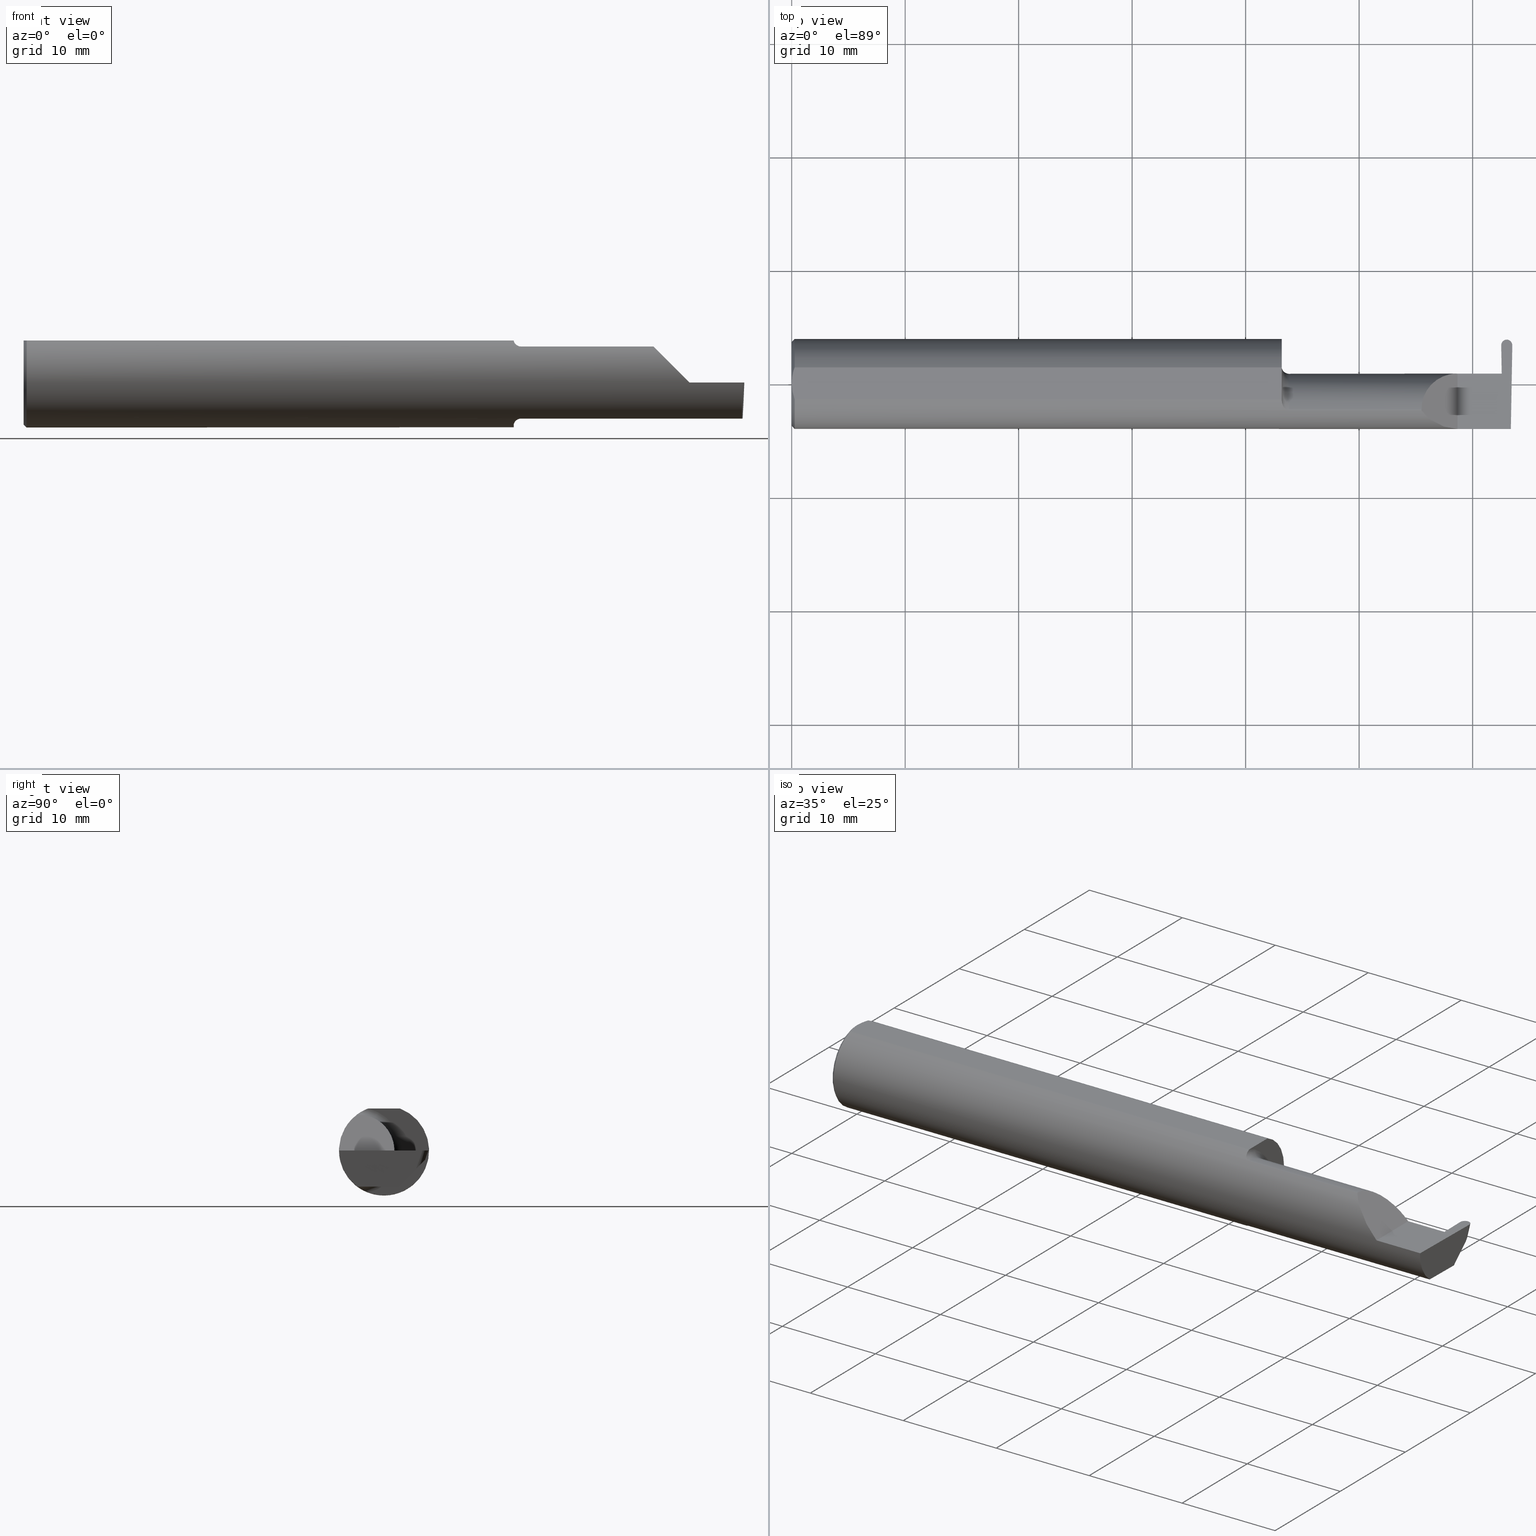
[diagram: canonical four-view strip — front | top / right | iso, engineering-drawing reading convention]
A machine part, canonical four-view strip (front | top / right | iso — engineering-drawing reading convention). The complete STEP part file that produces these views, byte-faithful:
ISO-10303-21;
HEADER;
FILE_DESCRIPTION (( 'STEP AP203' ),
    '1' );
FILE_NAME ('222029-GFR038-12.STEP',
    '2024-06-17T21:56:23',
    ( '' ),
    ( '' ),
    'SwSTEP 2.0',
    'SolidWorks 2022',
    '' );
FILE_SCHEMA (( 'CONFIG_CONTROL_DESIGN' ));
ENDSEC;

DATA;
#1 = DATE_AND_TIME ( #92, #565 ) ;
#2 = DIRECTION ( 'NONE',  ( 1.000000000000000000, 0.000000000000000000, -0.000000000000000000 ) ) ;
#3 = CARTESIAN_POINT ( 'NONE',  ( 0.004356241145161599167, -0.03705973501792377695, 0.1460999999999998689 ) ) ;
#4 = DIRECTION ( 'NONE',  ( 0.03867711768362992741, -0.3253245514560482166, -0.9448111011136606230 ) ) ;
#5 =( BOUNDED_CURVE ( )  B_SPLINE_CURVE ( 3, ( #732, #799, #187, #788 ),
 .UNSPECIFIED., .F., .T. ) 
 B_SPLINE_CURVE_WITH_KNOTS ( ( 4, 4 ),
 ( 1.570796326794916320, 1.626572441210934583 ),
 .UNSPECIFIED. ) 
 CURVE ( )  GEOMETRIC_REPRESENTATION_ITEM ( )  RATIONAL_B_SPLINE_CURVE ( ( 1.000000000000000000, 0.9997407688903218181, 0.9997407688903218181, 1.000000000000000000 ) ) 
 REPRESENTATION_ITEM ( '' )  );
#6 = ORIENTED_EDGE ( 'NONE', *, *, #53, .T. ) ;
#7 = ADVANCED_FACE ( 'NONE', ( #776 ), #648, .F. ) ;
#8 = PERSON_AND_ORGANIZATION_ROLE ( 'creator' ) ;
#9 = CARTESIAN_POINT ( 'NONE',  ( 2.455817866257967275, 0.03559550628247790810, -0.008719559218017784372 ) ) ;
#10 = LINE ( 'NONE', #137, #118 ) ;
#11 = CARTESIAN_POINT ( 'NONE',  ( 2.459017824355290038, 0.2076299705802605033, 0.03340412659224087366 ) ) ;
#12 = EDGE_LOOP ( 'NONE', ( #27, #256, #341, #68, #69, #653 ) ) ;
#13 = SECURITY_CLASSIFICATION_LEVEL ( 'unclassified' ) ;
#14 = FACE_OUTER_BOUND ( 'NONE', #90, .T. ) ;
#15 = CARTESIAN_POINT ( 'NONE',  ( 0.006903212852520951119, -0.04617911398309931109, 0.1460999999999998689 ) ) ;
#16 = DIRECTION ( 'NONE',  ( 0.000000000000000000, -0.03489949670250104552, -0.9993908270190957621 ) ) ;
#17 = ORIENTED_EDGE ( 'NONE', *, *, #160, .F. ) ;
#18 = ADVANCED_FACE ( 'NONE', ( #780 ), #608, .T. ) ;
#19 = DIRECTION ( 'NONE',  ( -0.03867711768363010089, -0.3253245514560481610, -0.9448111011136605120 ) ) ;
#20 = EDGE_LOOP ( 'NONE', ( #134, #317, #386, #79, #33, #667, #521, #685 ) ) ;
#21 = ORIENTED_EDGE ( 'NONE', *, *, #618, .F. ) ;
#22 = APPROVAL_DATE_TIME ( #83, #746 ) ;
#23 = EDGE_CURVE ( 'NONE', #379, #582, #52, .T. ) ;
#24 = CARTESIAN_POINT ( 'NONE',  ( 2.461468991288086272, 0.1334798692399049025, 0.0002806897643215190891 ) ) ;
#25 = ORIENTED_EDGE ( 'NONE', *, *, #676, .T. ) ;
#26 = ORIENTED_EDGE ( 'NONE', *, *, #191, .F. ) ;
#27 = ORIENTED_EDGE ( 'NONE', *, *, #708, .F. ) ;
#28 = DIRECTION ( 'NONE',  ( 0.000000000000000000, 0.000000000000000000, 1.000000000000000000 ) ) ;
#29 = VERTEX_POINT ( 'NONE', #171 ) ;
#30 = CC_DESIGN_APPROVAL ( #415, ( #35 ) ) ;
#31 = VERTEX_POINT ( 'NONE', #742 ) ;
#32 = DIRECTION ( 'NONE',  ( 0.000000000000000000, 0.000000000000000000, -1.000000000000000000 ) ) ;
#33 = ORIENTED_EDGE ( 'NONE', *, *, #480, .T. ) ;
#34 = VERTEX_POINT ( 'NONE', #366 ) ;
#35 = PRODUCT_DEFINITION ( 'UNKNOWN', '', #506, #164 ) ;
#36 = CIRCLE ( 'NONE', #45, 0.1560999999999999888 ) ;
#37 = VECTOR ( 'NONE', #378, 39.37007874015748143 ) ;
#38 = CARTESIAN_POINT ( 'NONE',  ( 2.492005481760536156, -0.1336908980339254205, -0.09488266708345013956 ) ) ;
#39 = AXIS2_PLACEMENT_3D ( 'NONE', #40, #538, #660 ) ;
#40 = CARTESIAN_POINT ( 'NONE',  ( -3.937007874019685528E-05, 0.1539000000000000090, 0.000000000000000000 ) ) ;
#41 = EDGE_CURVE ( 'NONE', #572, #189, #630, .T. ) ;
#42 = DIRECTION ( 'NONE',  ( -0.03867711768362992047, 0.3253245514560482166, 0.9448111011136606230 ) ) ;
#43 = EDGE_CURVE ( 'NONE', #324, #530, #611, .T. ) ;
#44 = PERSON ( 'UNSPECIFIED', 'UNSPECIFIED', 'UNSPECIFIED', ('UNSPECIFIED'), ('UNSPECIFIED'), ('UNSPECIFIED') ) ;
#45 = AXIS2_PLACEMENT_3D ( 'NONE', #374, #680, #621 ) ;
#46 =( NAMED_UNIT ( * ) SI_UNIT ( $, .STERADIAN. ) SOLID_ANGLE_UNIT ( ) );
#47 = PLANE ( 'NONE',  #556 ) ;
#48 = CARTESIAN_POINT ( 'NONE',  ( 1.699999999999999067, 0.03559550628246697240, -0.008719559218174058671 ) ) ;
#49 = VERTEX_POINT ( 'NONE', #793 ) ;
#50 = DIRECTION ( 'NONE',  ( 0.03490480639812536257, 0.000000000000000000, 0.9993906415863165194 ) ) ;
#51 = DIRECTION ( 'NONE',  ( -1.000000000000000000, -0.000000000000000000, -0.000000000000000000 ) ) ;
#52 = LINE ( 'NONE', #796, #228 ) ;
#53 = EDGE_CURVE ( 'NONE', #61, #682, #129, .T. ) ;
#54 = EDGE_CURVE ( 'NONE', #189, #530, #80, .T. ) ;
#55 = COORDINATED_UNIVERSAL_TIME_OFFSET ( 8, 0, .BEHIND. ) ;
#56 = DIRECTION ( 'NONE',  ( 0.03547001781079411886, 0.000000000000000000, -0.9993707409347654114 ) ) ;
#57 = DIRECTION ( 'NONE',  ( -1.000000000000000000, -0.000000000000000000, -0.000000000000000000 ) ) ;
#58 = CARTESIAN_POINT ( 'NONE',  ( 2.500000000000000000, -0.2500000000000000555, 0.000000000000000000 ) ) ;
#59 = CARTESIAN_POINT ( 'NONE',  ( 1.710315048287043505, -0.08709553534231927185, -0.1295667287130568834 ) ) ;
#60 = CARTESIAN_POINT ( 'NONE',  ( 1.699999999999999734, -0.06156212810510099803, 0.1436177747480845701 ) ) ;
#61 = VERTEX_POINT ( 'NONE', #492 ) ;
#62 = VERTEX_POINT ( 'NONE', #786 ) ;
#63 = PLANE ( 'NONE',  #546 ) ;
#64 = CARTESIAN_POINT ( 'NONE',  ( 2.463113151018988756, 0.1294467622302611365, -0.04477908175775938138 ) ) ;
#65 = CARTESIAN_POINT ( 'NONE',  ( 2.185081329771846992, -0.09360841750841733533, 0.1249186702281521039 ) ) ;
#66 = EDGE_CURVE ( 'NONE', #469, #507, #636, .T. ) ;
#67 =( BOUNDED_CURVE ( )  B_SPLINE_CURVE ( 3, ( #377, #631, #321, #325 ),
 .UNSPECIFIED., .F., .F. ) 
 B_SPLINE_CURVE_WITH_KNOTS ( ( 4, 4 ),
 ( 0.4273896528388657634, 0.4634648172053296156 ),
 .UNSPECIFIED. ) 
 CURVE ( )  GEOMETRIC_REPRESENTATION_ITEM ( )  RATIONAL_B_SPLINE_CURVE ( ( 1.000000000000000000, 0.9998915514833921492, 0.9998915514833921492, 1.000000000000000000 ) ) 
 REPRESENTATION_ITEM ( '' )  );
#68 = ORIENTED_EDGE ( 'NONE', *, *, #432, .F. ) ;
#69 = ORIENTED_EDGE ( 'NONE', *, *, #724, .T. ) ;
#70 = VECTOR ( 'NONE', #615, 39.37007874015748143 ) ;
#71 = TOROIDAL_SURFACE ( 'NONE', #345, 0.1499999999999999667, 0.02499999999999994241 ) ;
#72 = DIRECTION ( 'NONE',  ( -0.03867711768363010783, -0.3253245514560481610, -0.9448111011136605120 ) ) ;
#73 = CARTESIAN_POINT ( 'NONE',  ( 2.310000000000000053, -0.1560999999999999888, 2.326828918379970872E-17 ) ) ;
#74 = EDGE_CURVE ( 'NONE', #289, #165, #486, .T. ) ;
#75 = VERTEX_POINT ( 'NONE', #65 ) ;
#76 = DIRECTION ( 'NONE',  ( 0.000000000000000000, 0.9455185755993165131, -0.3255681544571574215 ) ) ;
#77 = CARTESIAN_POINT ( 'NONE',  ( 0.0009113193687667381273, -0.01867274705588958111, 0.1460999999999998411 ) ) ;
#78 = DIRECTION ( 'NONE',  ( 1.000000000000000000, 0.000000000000000000, 0.000000000000000000 ) ) ;
#79 = ORIENTED_EDGE ( 'NONE', *, *, #43, .F. ) ;
#80 = CIRCLE ( 'NONE', #473, 0.1250000000000000278 ) ;
#81 = VECTOR ( 'NONE', #454, 39.37007874015748143 ) ;
#82 = EDGE_CURVE ( 'NONE', #224, #289, #533, .T. ) ;
#83 = DATE_AND_TIME ( #211, #470 ) ;
#84 = PLANE ( 'NONE',  #241 ) ;
#85 = CARTESIAN_POINT ( 'NONE',  ( 2.689688574201023474, -0.08909999999999985987, -0.1250000000000000278 ) ) ;
#86 = AXIS2_PLACEMENT_3D ( 'NONE', #657, #109, #353 ) ;
#87 = CARTESIAN_POINT ( 'NONE',  ( 1.720361275910303522, -0.09360841750841747411, -0.1249186702281520345 ) ) ;
#88 = ORIENTED_EDGE ( 'NONE', *, *, #279, .F. ) ;
#89 = EDGE_CURVE ( 'NONE', #338, #572, #612, .T. ) ;
#90 = EDGE_LOOP ( 'NONE', ( #334, #266, #652, #775, #17 ) ) ;
#91 = ADVANCED_FACE ( 'NONE', ( #554 ), #735, .F. ) ;
#92 = CALENDAR_DATE ( 2024, 17, 6 ) ;
#93 = SECURITY_CLASSIFICATION ( '', '', #13 ) ;
#94 = DIRECTION ( 'NONE',  ( 0.000000000000000000, 0.000000000000000000, -1.000000000000000000 ) ) ;
#95 = ORIENTED_EDGE ( 'NONE', *, *, #618, .T. ) ;
#96 = DIRECTION ( 'NONE',  ( 0.9992386149554827179, 0.01744177490282218523, 0.03489949670250104552 ) ) ;
#97 = ORIENTED_EDGE ( 'NONE', *, *, #267, .F. ) ;
#98 = DIRECTION ( 'NONE',  ( -1.000000000000000000, -0.000000000000000000, -0.000000000000000000 ) ) ;
#99 = ORIENTED_EDGE ( 'NONE', *, *, #436, .F. ) ;
#100 = ORIENTED_EDGE ( 'NONE', *, *, #676, .F. ) ;
#101 = CARTESIAN_POINT ( 'NONE',  ( 0.009999999999999825001, 0.000000000000000000, -0.1560999999999999888 ) ) ;
#102 = ORIENTED_EDGE ( 'NONE', *, *, #41, .F. ) ;
#103 = AXIS2_PLACEMENT_3D ( 'NONE', #58, #739, #602 ) ;
#104 = VERTEX_POINT ( 'NONE', #316 ) ;
#105 = EDGE_CURVE ( 'NONE', #507, #165, #36, .T. ) ;
#106 = DIRECTION ( 'NONE',  ( 1.000000000000000000, 0.000000000000000000, 0.000000000000000000 ) ) ;
#107 = AXIS2_PLACEMENT_3D ( 'NONE', #225, #598, #32 ) ;
#108 = ADVANCED_FACE ( 'NONE', ( #802 ), #487, .T. ) ;
#109 = DIRECTION ( 'NONE',  ( -1.000000000000000000, -0.000000000000000000, -0.000000000000000000 ) ) ;
#110 = CIRCLE ( 'NONE', #688, 0.02499999999999993894 ) ;
#111 = VECTOR ( 'NONE', #4, 39.37007874015747433 ) ;
#112 = EDGE_CURVE ( 'NONE', #221, #62, #357, .T. ) ;
#113 = CARTESIAN_POINT ( 'NONE',  ( 1.699999999999999956, -0.08910000000000001252, 0.000000000000000000 ) ) ;
#114 = DIRECTION ( 'NONE',  ( 0.000000000000000000, 0.000000000000000000, 1.000000000000000000 ) ) ;
#115 = AXIS2_PLACEMENT_3D ( 'NONE', #188, #185, #180 ) ;
#116 = CARTESIAN_POINT ( 'NONE',  ( 1.724999999999999867, -0.08910000000000001252, 0.000000000000000000 ) ) ;
#117 = CARTESIAN_POINT ( 'NONE',  ( 1.705056522840237898, -0.07943464720522702693, 0.1344128205797975040 ) ) ;
#118 = VECTOR ( 'NONE', #519, 39.37007874015748854 ) ;
#119 = EDGE_CURVE ( 'NONE', #176, #61, #371, .T. ) ;
#120 = ORIENTED_EDGE ( 'NONE', *, *, #489, .F. ) ;
#121 = FACE_OUTER_BOUND ( 'NONE', #12, .T. ) ;
#122 = CARTESIAN_POINT ( 'NONE',  ( 2.463182057637018030, 0.03590000000000000135, 0.000000000000000000 ) ) ;
#123 = CARTESIAN_POINT ( 'NONE',  ( 0.009999999999999825001, 0.05497272050753933964, 0.1460999999999998689 ) ) ;
#124 = ORIENTED_EDGE ( 'NONE', *, *, #160, .T. ) ;
#125 = DIRECTION ( 'NONE',  ( -1.000000000000000000, -0.000000000000000000, -0.000000000000000000 ) ) ;
#126 = VERTEX_POINT ( 'NONE', #515 ) ;
#127 = CARTESIAN_POINT ( 'NONE',  ( 2.480730819999999781, 0.1431774318487742947, -0.03104841213924604965 ) ) ;
#128 = LINE ( 'NONE', #122, #70 ) ;
#129 = LINE ( 'NONE', #48, #359 ) ;
#130 = ORIENTED_EDGE ( 'NONE', *, *, #613, .F. ) ;
#131 =( NAMED_UNIT ( * ) PLANE_ANGLE_UNIT ( ) SI_UNIT ( $, .RADIAN. ) );
#132 = CARTESIAN_POINT ( 'NONE',  ( 1.699999999999999956, 0.03590000000000000135, 9.797174393178831081E-17 ) ) ;
#133 = ORIENTED_EDGE ( 'NONE', *, *, #186, .T. ) ;
#134 = ORIENTED_EDGE ( 'NONE', *, *, #119, .F. ) ;
#135 = AXIS2_PLACEMENT_3D ( 'NONE', #274, #72, #76 ) ;
#136 = CARTESIAN_POINT ( 'NONE',  ( 1.699999999999999956, -0.05502817059483729872, -0.1460791239054556601 ) ) ;
#137 = CARTESIAN_POINT ( 'NONE',  ( 2.491792233050964533, -0.08564570651617034458, -0.1250000000000000278 ) ) ;
#138 = LINE ( 'NONE', #336, #392 ) ;
#139 = ORIENTED_EDGE ( 'NONE', *, *, #777, .F. ) ;
#140 = ADVANCED_FACE ( 'NONE', ( #197 ), #806, .F. ) ;
#141 = PERSON_AND_ORGANIZATION ( #44, #318 ) ;
#142 = CARTESIAN_POINT ( 'NONE',  ( 2.455817866257967275, 0.03559550628247790810, -0.008719559218017784372 ) ) ;
#143 = CARTESIAN_POINT ( 'NONE',  ( 2.215117332916549220, -0.1336908980339253650, 0.09488266708345012568 ) ) ;
#144 = CARTESIAN_POINT ( 'NONE',  ( 2.184999999999999165, -0.09060321336276835891, 0.1250000000000000555 ) ) ;
#145 = ORIENTED_EDGE ( 'NONE', *, *, #74, .T. ) ;
#146 = VECTOR ( 'NONE', #505, 39.37007874015748854 ) ;
#147 = CARTESIAN_POINT ( 'NONE',  ( 2.480536137934067575, 0.1539000000000000090, 0.000000000000000000 ) ) ;
#148 = CARTESIAN_POINT ( 'NONE',  ( 2.499997065210553426, 0.1342945264389270033, 0.000000000000000000 ) ) ;
#149 = ORIENTED_EDGE ( 'NONE', *, *, #574, .F. ) ;
#150 = EDGE_CURVE ( 'NONE', #226, #126, #10, .T. ) ;
#151 = DATE_TIME_ROLE ( 'classification_date' ) ;
#152 = CARTESIAN_POINT ( 'NONE',  ( 2.093230820000000048, -0.09360841750841740472, 0.1249186702281520484 ) ) ;
#153 = ORIENTED_EDGE ( 'NONE', *, *, #399, .F. ) ;
#154 = MANIFOLD_SOLID_BREP ( 'Radii', #290 ) ;
#155 = ORIENTED_EDGE ( 'NONE', *, *, #613, .T. ) ;
#156 = EDGE_CURVE ( 'NONE', #469, #289, #599, .T. ) ;
#157 = DIRECTION ( 'NONE',  ( 0.000000000000000000, 0.000000000000000000, -1.000000000000000000 ) ) ;
#158 = ORIENTED_EDGE ( 'NONE', *, *, #202, .F. ) ;
#159 = ORIENTED_EDGE ( 'NONE', *, *, #166, .T. ) ;
#160 = EDGE_CURVE ( 'NONE', #582, #62, #541, .T. ) ;
#161 = DIRECTION ( 'NONE',  ( 0.000000000000000000, 0.000000000000000000, -1.000000000000000000 ) ) ;
#162 = ORIENTED_EDGE ( 'NONE', *, *, #445, .T. ) ;
#163 = ORIENTED_EDGE ( 'NONE', *, *, #66, .F. ) ;
#164 = DESIGN_CONTEXT ( 'detailed design', #387, 'design' ) ;
#165 = VERTEX_POINT ( 'NONE', #270 ) ;
#166 = EDGE_CURVE ( 'NONE', #224, #507, #684, .T. ) ;
#167 = DIRECTION ( 'NONE',  ( -0.000000000000000000, 1.000000000000000000, 1.224646799147353207E-16 ) ) ;
#168 = EDGE_CURVE ( 'NONE', #104, #526, #760, .T. ) ;
#169 = CARTESIAN_POINT ( 'NONE',  ( 1.724999999999999867, -0.08910000000000001252, 0.1250000000000000278 ) ) ;
#170 = CARTESIAN_POINT ( 'NONE',  ( 1.724999999999999867, -0.08909999999999999865, -0.1499999999999999667 ) ) ;
#171 = CARTESIAN_POINT ( 'NONE',  ( 1.724999999999999867, -0.09360841750841744635, -0.1249186702281520484 ) ) ;
#172 = VECTOR ( 'NONE', #196, 39.37007874015748854 ) ;
#173 = VECTOR ( 'NONE', #654, 39.37007874015748143 ) ;
#174 = CARTESIAN_POINT ( 'NONE',  ( 2.499981158297549744, 0.1333832200032812054, 0.000000000000000000 ) ) ;
#175 = DIRECTION ( 'NONE',  ( 1.000000000000000000, -0.000000000000000000, -0.000000000000000000 ) ) ;
#176 = VERTEX_POINT ( 'NONE', #203 ) ;
#177 = AXIS2_PLACEMENT_3D ( 'NONE', #733, #57, #482 ) ;
#178 = DIRECTION ( 'NONE',  ( 1.000000000000000000, 0.000000000000000000, 0.000000000000000000 ) ) ;
#179 = CARTESIAN_POINT ( 'NONE',  ( 2.469930825457742785, 0.1422011671032358537, -0.03202467688478448371 ) ) ;
#180 = DIRECTION ( 'NONE',  ( 0.000000000000000000, 0.000000000000000000, -1.000000000000000000 ) ) ;
#181 = ORIENTED_EDGE ( 'NONE', *, *, #156, .F. ) ;
#182 = AXIS2_PLACEMENT_3D ( 'NONE', #315, #560, #253 ) ;
#183 = DIRECTION ( 'NONE',  ( 0.000000000000000000, -1.000000000000000000, 0.000000000000000000 ) ) ;
#184 = CARTESIAN_POINT ( 'NONE',  ( 1.699999999999999956, -0.08909999999999999865, -0.1250000000000000278 ) ) ;
#185 = DIRECTION ( 'NONE',  ( 1.000000000000000000, 0.000000000000000000, 0.000000000000000000 ) ) ;
#186 = EDGE_CURVE ( 'NONE', #31, #75, #619, .T. ) ;
#187 = CARTESIAN_POINT ( 'NONE',  ( 2.480730819999999781, 0.1462124952691014335, -0.02229539791963374221 ) ) ;
#188 = CARTESIAN_POINT ( 'NONE',  ( 0.009999999999999825001, 0.000000000000000000, 0.000000000000000000 ) ) ;
#189 = VERTEX_POINT ( 'NONE', #697 ) ;
#190 = APPROVAL_PERSON_ORGANIZATION ( #575, #600, #320 ) ;
#191 = EDGE_CURVE ( 'NONE', #126, #176, #694, .T. ) ;
#192 = CARTESIAN_POINT ( 'NONE',  ( 1.724999999999999867, -0.08910000000000001252, 0.1499999999999999667 ) ) ;
#193 = DIRECTION ( 'NONE',  ( 1.000000000000000000, 0.000000000000000000, 0.000000000000000000 ) ) ;
#194 = CARTESIAN_POINT ( 'NONE',  ( 2.259912409421231949, -0.1560999999999999333, 0.05008759057876778498 ) ) ;
#195 = EDGE_LOOP ( 'NONE', ( #284, #162, #769 ) ) ;
#196 = DIRECTION ( 'NONE',  ( -0.03701368837992422695, -0.7066222423871549863, -0.7066222423871629799 ) ) ;
#197 = FACE_OUTER_BOUND ( 'NONE', #650, .T. ) ;
#198 = CARTESIAN_POINT ( 'NONE',  ( 1.712810002172886481, -0.08909999999996051634, -0.1281733201567833713 ) ) ;
#199 = ORIENTED_EDGE ( 'NONE', *, *, #89, .F. ) ;
#200 = COORDINATED_UNIVERSAL_TIME_OFFSET ( 8, 0, .BEHIND. ) ;
#201 = CYLINDRICAL_SURFACE ( 'NONE', #135, 0.01930000000000000118 ) ;
#202 = EDGE_CURVE ( 'NONE', #338, #737, #249, .T. ) ;
#203 = CARTESIAN_POINT ( 'NONE',  ( 2.467773529127905707, -0.08910000000000001252, -0.1250000000000000278 ) ) ;
#204 = CARTESIAN_POINT ( 'NONE',  ( 2.463182057637018030, 0.03590000000000000135, 0.000000000000000000 ) ) ;
#205 = ORIENTED_EDGE ( 'NONE', *, *, #508, .T. ) ;
#206 = ADVANCED_BREP_SHAPE_REPRESENTATION ( '222029-GFR038-12', ( #154, #380 ), #590 ) ;
#207 = CARTESIAN_POINT ( 'NONE',  ( 0.000000000000000000, 0.000000000000000000, -0.1461000000000001187 ) ) ;
#208 = CC_DESIGN_PERSON_AND_ORGANIZATION_ASSIGNMENT ( #498, #677, ( #35 ) ) ;
#209 = LINE ( 'NONE', #522, #354 ) ;
#210 = ORIENTED_EDGE ( 'NONE', *, *, #314, .F. ) ;
#211 = CALENDAR_DATE ( 2024, 17, 6 ) ;
#212 = CONICAL_SURFACE ( 'NONE', #107, 0.1461000000000001187, 0.7853981633974499443 ) ;
#213 = DIRECTION ( 'NONE',  ( 1.000000000000000000, 0.000000000000000000, 0.000000000000000000 ) ) ;
#214 = ORIENTED_EDGE ( 'NONE', *, *, #489, .T. ) ;
#215 = EDGE_CURVE ( 'NONE', #469, #501, #442, .T. ) ;
#216 = AXIS2_PLACEMENT_3D ( 'NONE', #568, #753, #2 ) ;
#217 = APPROVAL_STATUS ( 'not_yet_approved' ) ;
#218 = CIRCLE ( 'NONE', #659, 0.1560999999999999888 ) ;
#219 = FACE_OUTER_BOUND ( 'NONE', #711, .T. ) ;
#220 = EDGE_LOOP ( 'NONE', ( #617, #773, #139, #120, #450 ) ) ;
#221 = VERTEX_POINT ( 'NONE', #147 ) ;
#222 = ADVANCED_FACE ( 'NONE', ( #449 ), #340, .T. ) ;
#223 = CC_DESIGN_APPROVAL ( #600, ( #93 ) ) ;
#224 = VERTEX_POINT ( 'NONE', #280 ) ;
#225 = CARTESIAN_POINT ( 'NONE',  ( 0.000000000000000000, 0.000000000000000000, 0.000000000000000000 ) ) ;
#226 = VERTEX_POINT ( 'NONE', #512 ) ;
#227 = ORIENTED_EDGE ( 'NONE', *, *, #635, .F. ) ;
#228 = VECTOR ( 'NONE', #304, 39.37007874015748143 ) ;
#229 = AXIS2_PLACEMENT_3D ( 'NONE', #581, #275, #401 ) ;
#230 = FACE_OUTER_BOUND ( 'NONE', #232, .T. ) ;
#231 = ORIENTED_EDGE ( 'NONE', *, *, #364, .T. ) ;
#232 = EDGE_LOOP ( 'NONE', ( #523, #305, #566 ) ) ;
#233 = CIRCLE ( 'NONE', #352, 0.02499999999999993894 ) ;
#234 = DIRECTION ( 'NONE',  ( 0.000000000000000000, 0.000000000000000000, 1.000000000000000000 ) ) ;
#235 = CARTESIAN_POINT ( 'NONE',  ( 2.236776695296636142, 0.03589999999999995972, 0.07322330470336316233 ) ) ;
#236 = DIRECTION ( 'NONE',  ( -1.000000000000000000, -0.000000000000000000, -0.000000000000000000 ) ) ;
#237 = DIRECTION ( 'NONE',  ( -1.000000000000000000, -0.000000000000000000, -0.000000000000000000 ) ) ;
#238 = DIRECTION ( 'NONE',  ( 0.000000000000000000, 0.000000000000000000, 1.000000000000000000 ) ) ;
#239 = DIRECTION ( 'NONE',  ( -0.01745240643727553886, 0.9998476951563914916, 0.000000000000000000 ) ) ;
#240 = CARTESIAN_POINT ( 'NONE',  ( 0.000000000000000000, 0.000000000000000000, 0.1460999999999998689 ) ) ;
#241 = AXIS2_PLACEMENT_3D ( 'NONE', #514, #382, #693 ) ;
#242 = ORIENTED_EDGE ( 'NONE', *, *, #726, .T. ) ;
#243 = FACE_OUTER_BOUND ( 'NONE', #642, .T. ) ;
#244 = PLANE ( 'NONE',  #182 ) ;
#245 = DIRECTION ( 'NONE',  ( 0.000000000000000000, 0.000000000000000000, 1.000000000000000000 ) ) ;
#246 = DIRECTION ( 'NONE',  ( 0.000000000000000000, 0.000000000000000000, -1.000000000000000000 ) ) ;
#247 = LINE ( 'NONE', #499, #800 ) ;
#248 = CARTESIAN_POINT ( 'NONE',  ( 0.006876379561362597204, 0.04610291843171884091, 0.1460999999999998689 ) ) ;
#249 = CIRCLE ( 'NONE', #738, 0.1499999999999999667 ) ;
#250 = ORIENTED_EDGE ( 'NONE', *, *, #436, .T. ) ;
#251 = AXIS2_PLACEMENT_3D ( 'NONE', #116, #51, #748 ) ;
#252 = PLANE ( 'NONE',  #103 ) ;
#253 = DIRECTION ( 'NONE',  ( -0.7071067811865513475, 0.000000000000000000, 0.7071067811865436870 ) ) ;
#254 = CARTESIAN_POINT ( 'NONE',  ( 0.0009290501461037190250, 0.01879395969143605669, 0.1460999999999998689 ) ) ;
#255 = EDGE_CURVE ( 'NONE', #696, #34, #391, .T. ) ;
#256 = ORIENTED_EDGE ( 'NONE', *, *, #23, .T. ) ;
#257 = CONICAL_SURFACE ( 'NONE', #706, 0.1461000000000001187, 0.7853981633974499443 ) ;
#258 = CARTESIAN_POINT ( 'NONE',  ( 2.461270922331974642, 0.1453888682971902213, 2.390809088810166648E-18 ) ) ;
#259 = DIRECTION ( 'NONE',  ( 0.000000000000000000, 0.000000000000000000, -1.000000000000000000 ) ) ;
#260 = CARTESIAN_POINT ( 'NONE',  ( 2.492285715036194116, 0.1538999999999999257, -1.422725471777829947E-18 ) ) ;
#261 = ORIENTED_EDGE ( 'NONE', *, *, #432, .T. ) ;
#262 = ORIENTED_EDGE ( 'NONE', *, *, #255, .F. ) ;
#263 = CARTESIAN_POINT ( 'NONE',  ( 2.455919364163807739, 0.03569700418831858735, -0.005813039478678525517 ) ) ;
#264 = DIRECTION ( 'NONE',  ( 0.000000000000000000, -0.7071067811865515695, 0.7071067811865434649 ) ) ;
#265 = FACE_OUTER_BOUND ( 'NONE', #458, .T. ) ;
#266 = ORIENTED_EDGE ( 'NONE', *, *, #757, .F. ) ;
#267 = EDGE_CURVE ( 'NONE', #29, #281, #413, .T. ) ;
#268 = COORDINATED_UNIVERSAL_TIME_OFFSET ( 8, 0, .BEHIND. ) ;
#269 = FACE_OUTER_BOUND ( 'NONE', #411, .T. ) ;
#270 = CARTESIAN_POINT ( 'NONE',  ( 0.009999999999999825001, 0.05497272050753933964, 0.1460999999999998689 ) ) ;
#271 = CARTESIAN_POINT ( 'NONE',  ( 3.749399456654646757E-32, -0.1560999999999999333, 3.061616997868383634E-16 ) ) ;
#272 = ORIENTED_EDGE ( 'NONE', *, *, #285, .F. ) ;
#273 = APPROVAL_STATUS ( 'not_yet_approved' ) ;
#274 = CARTESIAN_POINT ( 'NONE',  ( 2.477214178502805453, 0.1044344632894257108, -0.08437736749050758767 ) ) ;
#275 = DIRECTION ( 'NONE',  ( -1.000000000000000000, -0.000000000000000000, -0.000000000000000000 ) ) ;
#276 = ORIENTED_EDGE ( 'NONE', *, *, #790, .T. ) ;
#277 = CARTESIAN_POINT ( 'NONE',  ( 2.185027112864298182, -0.09210618219364773152, 0.1249728871357008025 ) ) ;
#278 = ORIENTED_EDGE ( 'NONE', *, *, #724, .F. ) ;
#279 = EDGE_CURVE ( 'NONE', #582, #513, #396, .T. ) ;
#280 = CARTESIAN_POINT ( 'NONE',  ( 0.000000000000000000, 0.000000000000000000, -0.1461000000000001187 ) ) ;
#281 = VERTEX_POINT ( 'NONE', #641 ) ;
#282 = ORIENTED_EDGE ( 'NONE', *, *, #531, .T. ) ;
#283 = CARTESIAN_POINT ( 'NONE',  ( 2.476825396828309600, 0.1851121289821666682, 0.09064660450542896819 ) ) ;
#284 = ORIENTED_EDGE ( 'NONE', *, *, #267, .T. ) ;
#285 = EDGE_CURVE ( 'NONE', #691, #29, #535, .T. ) ;
#286 = ORIENTED_EDGE ( 'NONE', *, *, #665, .F. ) ;
#287 = LINE ( 'NONE', #283, #781 ) ;
#288 = ORIENTED_EDGE ( 'NONE', *, *, #314, .T. ) ;
#289 = VERTEX_POINT ( 'NONE', #764 ) ;
#290 = CLOSED_SHELL ( 'NONE', ( #108, #476, #545, #91, #410, #292, #222, #609, #770, #701, #367, #502, #404, #309, #596, #734, #460, #140, #7, #743, #555, #721, #18 ) ) ;
#291 = AXIS2_PLACEMENT_3D ( 'NONE', #524, #690, #16 ) ;
#292 = ADVANCED_FACE ( 'NONE', ( #265 ), #578, .F. ) ;
#293 = CARTESIAN_POINT ( 'NONE',  ( 1.724999999999999867, -0.08910000000000001252, 0.000000000000000000 ) ) ;
#294 = AXIS2_PLACEMENT_3D ( 'NONE', #494, #193, #259 ) ;
#295 = EDGE_CURVE ( 'NONE', #62, #622, #138, .T. ) ;
#296 = CC_DESIGN_PERSON_AND_ORGANIZATION_ASSIGNMENT ( #422, #361, ( #679 ) ) ;
#297 = PLANE ( 'NONE',  #39 ) ;
#298 = LINE ( 'NONE', #416, #573 ) ;
#299 = MECHANICAL_CONTEXT ( 'NONE', #322, 'mechanical' ) ;
#300 = CARTESIAN_POINT ( 'NONE',  ( 2.468985697877362551, -2.435358991439782628, -0.07721978725935170484 ) ) ;
#301 = DIRECTION ( 'NONE',  ( -1.000000000000000000, -0.000000000000000000, -0.000000000000000000 ) ) ;
#302 = ORIENTED_EDGE ( 'NONE', *, *, #156, .T. ) ;
#303 = FACE_OUTER_BOUND ( 'NONE', #393, .T. ) ;
#304 = DIRECTION ( 'NONE',  ( 0.03867711768363010783, 0.3253245514560481610, 0.9448111011136606230 ) ) ;
#305 = ORIENTED_EDGE ( 'NONE', *, *, #41, .T. ) ;
#306 = DIRECTION ( 'NONE',  ( -0.03549161113179506721, 0.03487750912278139021, 0.9987611851171729338 ) ) ;
#307 = CARTESIAN_POINT ( 'NONE',  ( 1.703785422859118270, -0.07659497035394371989, 0.1360571150960168674 ) ) ;
#308 = ORIENTED_EDGE ( 'NONE', *, *, #399, .T. ) ;
#309 = ADVANCED_FACE ( 'NONE', ( #464 ), #342, .T. ) ;
#310 = CALENDAR_DATE ( 2024, 17, 6 ) ;
#311 = CARTESIAN_POINT ( 'NONE',  ( 1.699999999999997735, -0.06152246774674061114, -0.1436327148497733852 ) ) ;
#312 = CARTESIAN_POINT ( 'NONE',  ( 1.708314215045238615, -0.08466760255782121436, 0.1311795204669789217 ) ) ;
#313 = ORIENTED_EDGE ( 'NONE', *, *, #518, .T. ) ;
#314 = EDGE_CURVE ( 'NONE', #444, #488, #209, .T. ) ;
#315 = CARTESIAN_POINT ( 'NONE',  ( 2.310000000000000053, -0.2500000000000000555, 2.326828918379970872E-17 ) ) ;
#316 = CARTESIAN_POINT ( 'NONE',  ( 2.310000000000000053, 0.03590000000000000135, 9.797174393178831081E-17 ) ) ;
#317 = ORIENTED_EDGE ( 'NONE', *, *, #656, .T. ) ;
#318 = ORGANIZATION ( 'UNSPECIFIED', 'UNSPECIFIED', '' ) ;
#319 = AXIS2_PLACEMENT_3D ( 'NONE', #584, #644, #385 ) ;
#320 = APPROVAL_ROLE ( '' ) ;
#321 = CARTESIAN_POINT ( 'NONE',  ( 2.491705699447075428, -0.09060321336276823401, -0.1250000000000000833 ) ) ;
#322 = APPLICATION_CONTEXT ( 'configuration controlled 3d designs of mechanical parts and assemblies' ) ;
#323 = DIRECTION ( 'NONE',  ( 1.000000000000000000, 0.000000000000000000, 0.000000000000000000 ) ) ;
#324 = VERTEX_POINT ( 'NONE', #468 ) ;
#325 = CARTESIAN_POINT ( 'NONE',  ( 2.491731938133923130, -0.08909999999999985987, -0.1250000000000000278 ) ) ;
#326 = CARTESIAN_POINT ( 'NONE',  ( 2.500190717668024920, 0.1453888682971899160, -2.390809088810165492E-18 ) ) ;
#327 = DIRECTION ( 'NONE',  ( 1.000000000000000000, 0.000000000000000000, 0.000000000000000000 ) ) ;
#328 = ORIENTED_EDGE ( 'NONE', *, *, #202, .T. ) ;
#329 = CC_DESIGN_PERSON_AND_ORGANIZATION_ASSIGNMENT ( #567, #8, ( #506 ) ) ;
#330 = CIRCLE ( 'NONE', #394, 0.1560999999999999888 ) ;
#331 = LINE ( 'NONE', #563, #626 ) ;
#332 = CARTESIAN_POINT ( 'NONE',  ( 1.699999999999999956, -0.08910000000000001252, 0.000000000000000000 ) ) ;
#333 = DIRECTION ( 'NONE',  ( 0.000000000000000000, 0.000000000000000000, 1.000000000000000000 ) ) ;
#334 = ORIENTED_EDGE ( 'NONE', *, *, #23, .F. ) ;
#335 = EDGE_CURVE ( 'NONE', #488, #34, #767, .T. ) ;
#336 = CARTESIAN_POINT ( 'NONE',  ( 2.477214178502805009, 0.1226829717984925100, -0.09066083287153071935 ) ) ;
#337 = ORIENTED_EDGE ( 'NONE', *, *, #82, .F. ) ;
#338 = VERTEX_POINT ( 'NONE', #702 ) ;
#339 = APPROVAL_PERSON_ORGANIZATION ( #692, #746, #758 ) ;
#340 = CYLINDRICAL_SURFACE ( 'NONE', #229, 0.1560999999999999888 ) ;
#341 = ORIENTED_EDGE ( 'NONE', *, *, #279, .T. ) ;
#342 = CYLINDRICAL_SURFACE ( 'NONE', #319, 0.1250000000000000278 ) ;
#343 = ORIENTED_EDGE ( 'NONE', *, *, #166, .F. ) ;
#344 = ORIENTED_EDGE ( 'NONE', *, *, #335, .T. ) ;
#345 = AXIS2_PLACEMENT_3D ( 'NONE', #293, #414, #591 ) ;
#346 = CARTESIAN_POINT ( 'NONE',  ( 2.494928209896765114, -0.1560999999999999888, 0.000000000000000000 ) ) ;
#347 = ORIENTED_EDGE ( 'NONE', *, *, #384, .T. ) ;
#348 = EDGE_CURVE ( 'NONE', #75, #324, #714, .T. ) ;
#349 = FACE_OUTER_BOUND ( 'NONE', #358, .T. ) ;
#350 = CC_DESIGN_PERSON_AND_ORGANIZATION_ASSIGNMENT ( #141, #446, ( #506 ) ) ;
#351 = CARTESIAN_POINT ( 'NONE',  ( 1.699999999999999956, 0.000000000000000000, 0.000000000000000000 ) ) ;
#352 = AXIS2_PLACEMENT_3D ( 'NONE', #170, #167, #234 ) ;
#353 = DIRECTION ( 'NONE',  ( 0.000000000000000000, 0.000000000000000000, -1.000000000000000000 ) ) ;
#354 = VECTOR ( 'NONE', #457, 39.37007874015748854 ) ;
#355 = FACE_OUTER_BOUND ( 'NONE', #195, .T. ) ;
#356 = EDGE_CURVE ( 'NONE', #189, #75, #698, .T. ) ;
#357 = LINE ( 'NONE', #604, #360 ) ;
#358 = EDGE_LOOP ( 'NONE', ( #629, #214, #797 ) ) ;
#359 = VECTOR ( 'NONE', #431, 39.37007874015748143 ) ;
#360 = VECTOR ( 'NONE', #175, 39.37007874015748143 ) ;
#361 = PERSON_AND_ORGANIZATION_ROLE ( 'design_owner' ) ;
#362 = DIRECTION ( 'NONE',  ( -0.000000000000000000, 1.000000000000000000, -0.000000000000000000 ) ) ;
#363 = CARTESIAN_POINT ( 'NONE',  ( 1.712810002172222568, -0.08909999999984938301, 0.1281733201569305869 ) ) ;
#364 = EDGE_CURVE ( 'NONE', #501, #338, #218, .T. ) ;
#365 = LINE ( 'NONE', #184, #772 ) ;
#366 = CARTESIAN_POINT ( 'NONE',  ( 2.464030456314875384, 0.1119346375676058686, -0.06229120642041481581 ) ) ;
#367 = ADVANCED_FACE ( 'NONE', ( #219 ), #257, .T. ) ;
#368 = APPLICATION_PROTOCOL_DEFINITION ( 'international standard', 'config_control_design', 1994, #322 ) ;
#369 = DIRECTION ( 'NONE',  ( 0.9993699743034455407, 0.001238639365660562739, 0.03546999060124569891 ) ) ;
#370 = CARTESIAN_POINT ( 'NONE',  ( 0.004370115738486759528, 0.03710696786819756010, 0.1460999999999998411 ) ) ;
#371 =( BOUNDED_CURVE ( )  B_SPLINE_CURVE ( 3, ( #456, #570, #632, #564 ),
 .UNSPECIFIED., .F., .F. ) 
 B_SPLINE_CURVE_WITH_KNOTS ( ( 4, 4 ),
 ( 3.176499238629679756, 4.677482395344783050 ),
 .UNSPECIFIED. ) 
 CURVE ( )  GEOMETRIC_REPRESENTATION_ITEM ( )  RATIONAL_B_SPLINE_CURVE ( ( 1.000000000000000000, 0.8209024677461181918, 0.8209024677461181918, 1.000000000000000000 ) ) 
 REPRESENTATION_ITEM ( '' )  );
#372 = CARTESIAN_POINT ( 'NONE',  ( 2.499997065210553426, 0.1342945264389270033, 0.000000000000000000 ) ) ;
#373 = CARTESIAN_POINT ( 'NONE',  ( 1.708312875394041752, -0.08466547365232439393, -0.1311808389156051691 ) ) ;
#374 = CARTESIAN_POINT ( 'NONE',  ( 0.009999999999999825001, 0.000000000000000000, 0.000000000000000000 ) ) ;
#375 = ORIENTED_EDGE ( 'NONE', *, *, #119, .T. ) ;
#376 = COORDINATED_UNIVERSAL_TIME_OFFSET ( 8, 0, .BEHIND. ) ;
#377 = CARTESIAN_POINT ( 'NONE',  ( 2.491656083944432165, -0.09360841750841740472, -0.1249186702281520484 ) ) ;
#378 = DIRECTION ( 'NONE',  ( 1.000000000000000000, 0.000000000000000000, 0.000000000000000000 ) ) ;
#379 = VERTEX_POINT ( 'NONE', #571 ) ;
#380 = AXIS2_PLACEMENT_3D ( 'NONE', #673, #238, #178 ) ;
#381 = CALENDAR_DATE ( 2024, 17, 6 ) ;
#382 = DIRECTION ( 'NONE',  ( 0.000000000000000000, 0.000000000000000000, 1.000000000000000000 ) ) ;
#383 = CARTESIAN_POINT ( 'NONE',  ( 0.009999999999999825001, -0.05497272050753933964, 0.1460999999999998689 ) ) ;
#384 = EDGE_CURVE ( 'NONE', #513, #31, #649, .T. ) ;
#385 = DIRECTION ( 'NONE',  ( 0.000000000000000000, 0.000000000000000000, 1.000000000000000000 ) ) ;
#386 = ORIENTED_EDGE ( 'NONE', *, *, #518, .F. ) ;
#387 = APPLICATION_CONTEXT ( 'configuration controlled 3d designs of mechanical parts and assemblies' ) ;
#388 = DIRECTION ( 'NONE',  ( -0.001239419280281361122, 0.9999992319196288060, 0.000000000000000000 ) ) ;
#389 = CARTESIAN_POINT ( 'NONE',  ( 2.185081329771846992, -0.09360841750841733533, 0.1249186702281521039 ) ) ;
#390 = AXIS2_PLACEMENT_3D ( 'NONE', #438, #301, #789 ) ;
#391 = LINE ( 'NONE', #11, #778 ) ;
#392 = VECTOR ( 'NONE', #19, 39.37007874015748854 ) ;
#393 = EDGE_LOOP ( 'NONE', ( #375, #227, #100 ) ) ;
#394 = AXIS2_PLACEMENT_3D ( 'NONE', #351, #783, #409 ) ;
#395 = DIRECTION ( 'NONE',  ( 0.000000000000000000, -0.7071067811865433539, -0.7071067811865514585 ) ) ;
#396 = LINE ( 'NONE', #148, #81 ) ;
#397 = EDGE_LOOP ( 'NONE', ( #517, #672, #155, #647 ) ) ;
#398 = EDGE_LOOP ( 'NONE', ( #412, #25, #471, #443, #439 ) ) ;
#399 = EDGE_CURVE ( 'NONE', #526, #444, #761, .T. ) ;
#400 = CALENDAR_DATE ( 2024, 17, 6 ) ;
#401 = DIRECTION ( 'NONE',  ( 0.000000000000000000, 0.000000000000000000, 1.000000000000000000 ) ) ;
#402 = ORIENTED_EDGE ( 'NONE', *, *, #364, .F. ) ;
#403 = LOCAL_TIME ( 14, 56, 23.00000000000000000, #268 ) ;
#404 = ADVANCED_FACE ( 'NONE', ( #230 ), #71, .F. ) ;
#405 =( BOUNDED_CURVE ( )  B_SPLINE_CURVE ( 3, ( #127, #795, #559, #791 ),
 .UNSPECIFIED., .F., .F. ) 
 B_SPLINE_CURVE_WITH_KNOTS ( ( 4, 4 ),
 ( 3.178506914422260632, 4.698656506723038362 ),
 .UNSPECIFIED. ) 
 CURVE ( )  GEOMETRIC_REPRESENTATION_ITEM ( )  RATIONAL_B_SPLINE_CURVE ( ( 1.000000000000000000, 0.8165229866942693704, 0.8165229866942693704, 1.000000000000000000 ) ) 
 REPRESENTATION_ITEM ( '' )  );
#406 = CARTESIAN_POINT ( 'NONE',  ( 1.724999999999999867, -0.08910000000000001252, 0.000000000000000000 ) ) ;
#407 = AXIS2_PLACEMENT_3D ( 'NONE', #549, #435, #495 ) ;
#408 = ORIENTED_EDGE ( 'NONE', *, *, #66, .T. ) ;
#409 = DIRECTION ( 'NONE',  ( 0.000000000000000000, 0.000000000000000000, -1.000000000000000000 ) ) ;
#410 = ADVANCED_FACE ( 'NONE', ( #725 ), #212, .T. ) ;
#411 = EDGE_LOOP ( 'NONE', ( #583, #426, #250, #645, #181 ) ) ;
#412 = ORIENTED_EDGE ( 'NONE', *, *, #191, .T. ) ;
#413 = B_SPLINE_CURVE_WITH_KNOTS ( 'NONE', 3,
 ( #771, #87, #755, #198 ),
 .UNSPECIFIED., .F., .F.,
 ( 4, 4 ),
 ( 1.958690481381664333E-07, 0.0003463854958010611205 ),
 .UNSPECIFIED. ) ;
#414 = DIRECTION ( 'NONE',  ( -1.000000000000000000, -0.000000000000000000, -0.000000000000000000 ) ) ;
#415 = APPROVAL ( #731, 'UNSPECIFIED' ) ;
#416 = CARTESIAN_POINT ( 'NONE',  ( 1.699999999999999956, 0.1560999999999999888, 0.1460999999999998689 ) ) ;
#417 = CARTESIAN_POINT ( 'NONE',  ( 2.463182057637018030, 0.03590000000000000135, 0.000000000000000000 ) ) ;
#418 = LOCAL_TIME ( 14, 56, 23.00000000000000000, #55 ) ;
#419 = CARTESIAN_POINT ( 'NONE',  ( 2.494928209896765114, -0.1560999999999999888, 0.000000000000000000 ) ) ;
#420 = VECTOR ( 'NONE', #516, 39.37007874015748143 ) ;
#421 = CARTESIAN_POINT ( 'NONE',  ( 1.699999999999999956, -0.08910000000000001252, 0.1250000000000000278 ) ) ;
#422 = PERSON_AND_ORGANIZATION ( #44, #318 ) ;
#423 = CARTESIAN_POINT ( 'NONE',  ( 1.712810002172886481, -0.08909999999996051634, -0.1281733201567833713 ) ) ;
#424 = CARTESIAN_POINT ( 'NONE',  ( 1.720364775055372775, -0.09360841750841747411, 0.1249186702281520345 ) ) ;
#425 = EDGE_CURVE ( 'NONE', #501, #587, #298, .T. ) ;
#426 = ORIENTED_EDGE ( 'NONE', *, *, #425, .T. ) ;
#427 = AXIS2_PLACEMENT_3D ( 'NONE', #718, #96, #474 ) ;
#428 = AXIS2_PLACEMENT_3D ( 'NONE', #448, #264, #395 ) ;
#429 = APPROVAL_ROLE ( '' ) ;
#430 = CARTESIAN_POINT ( 'NONE',  ( 1.712810002172222568, -0.08909999999984938301, 0.1281733201569305869 ) ) ;
#431 = DIRECTION ( 'NONE',  ( -1.000000000000000000, -0.000000000000000000, -0.000000000000000000 ) ) ;
#432 = EDGE_CURVE ( 'NONE', #49, #513, #787, .T. ) ;
#433 = CIRCLE ( 'NONE', #86, 0.1461000000000001187 ) ;
#434 = DIRECTION ( 'NONE',  ( -1.000000000000000000, -0.000000000000000000, -0.000000000000000000 ) ) ;
#435 = DIRECTION ( 'NONE',  ( -0.03867711768362992047, 0.3253245514560481610, 0.9448111011136606230 ) ) ;
#436 = EDGE_CURVE ( 'NONE', #587, #165, #472, .T. ) ;
#437 = LINE ( 'NONE', #553, #658 ) ;
#438 = CARTESIAN_POINT ( 'NONE',  ( 1.724999999999999867, -0.08910000000000001252, 0.000000000000000000 ) ) ;
#439 = ORIENTED_EDGE ( 'NONE', *, *, #150, .T. ) ;
#440 = CARTESIAN_POINT ( 'NONE',  ( 2.461480481702449818, 0.1333832200032812332, 0.000000000000000000 ) ) ;
#441 = CARTESIAN_POINT ( 'NONE',  ( 2.469796698367044741, -0.09293822696986775433, -0.1250000000000000278 ) ) ;
#442 = LINE ( 'NONE', #627, #569 ) ;
#443 = ORIENTED_EDGE ( 'NONE', *, *, #665, .T. ) ;
#444 = VERTEX_POINT ( 'NONE', #417 ) ;
#445 = EDGE_CURVE ( 'NONE', #281, #691, #233, .T. ) ;
#446 = PERSON_AND_ORGANIZATION_ROLE ( 'design_supplier' ) ;
#447 = CARTESIAN_POINT ( 'NONE',  ( 2.495646440191340965, 0.07786239281539021617, -0.09636345117263085680 ) ) ;
#448 = CARTESIAN_POINT ( 'NONE',  ( -3.937007874019685528E-05, 0.1432258439880203515, -0.03099999999999999978 ) ) ;
#449 = FACE_OUTER_BOUND ( 'NONE', #794, .T. ) ;
#450 = ORIENTED_EDGE ( 'NONE', *, *, #594, .T. ) ;
#451 = APPROVAL_PERSON_ORGANIZATION ( #614, #415, #429 ) ;
#452 = DATE_TIME_ROLE ( 'creation_date' ) ;
#453 = FACE_OUTER_BOUND ( 'NONE', #398, .T. ) ;
#454 = DIRECTION ( 'NONE',  ( -0.01745240643727612520, -0.9998476951563912696, 0.000000000000000000 ) ) ;
#455 = ORIENTED_EDGE ( 'NONE', *, *, #540, .T. ) ;
#456 = CARTESIAN_POINT ( 'NONE',  ( 2.467773529127905707, -0.08910000000000001252, -0.1250000000000000278 ) ) ;
#457 = DIRECTION ( 'NONE',  ( -0.01745240643727553193, 0.9998476951563912696, -0.000000000000000000 ) ) ;
#458 = EDGE_LOOP ( 'NONE', ( #751, #6, #242, #308 ) ) ;
#459 = ORIENTED_EDGE ( 'NONE', *, *, #356, .T. ) ;
#460 = ADVANCED_FACE ( 'NONE', ( #349 ), #297, .F. ) ;
#461 = B_SPLINE_CURVE_WITH_KNOTS ( 'NONE', 3,
 ( #9, #263, #687, #759 ),
 .UNSPECIFIED., .F., .F.,
 ( 4, 4 ),
 ( 0.000000000000000000, 1.000000000000000000 ),
 .UNSPECIFIED. ) ;
#462 = AXIS2_PLACEMENT_3D ( 'NONE', #532, #479, #779 ) ;
#463 = SHAPE_DEFINITION_REPRESENTATION ( #784, #206 ) ;
#464 = FACE_OUTER_BOUND ( 'NONE', #592, .T. ) ;
#465 = ORIENTED_EDGE ( 'NONE', *, *, #635, .T. ) ;
#466 = CC_DESIGN_DATE_AND_TIME_ASSIGNMENT ( #637, #452, ( #35 ) ) ;
#467 = APPROVAL_DATE_TIME ( #766, #600 ) ;
#468 = CARTESIAN_POINT ( 'NONE',  ( 2.184999999999998721, -0.08910000000000001252, 0.1250000000000000278 ) ) ;
#469 = VERTEX_POINT ( 'NONE', #586 ) ;
#470 = LOCAL_TIME ( 14, 56, 23.00000000000000000, #376 ) ;
#471 = ORIENTED_EDGE ( 'NONE', *, *, #574, .T. ) ;
#472 = LINE ( 'NONE', #595, #700 ) ;
#473 = AXIS2_PLACEMENT_3D ( 'NONE', #666, #500, #245 ) ;
#474 = DIRECTION ( 'NONE',  ( 0.03490480639812536257, 0.000000000000000000, -0.9993906415863165194 ) ) ;
#475 = VECTOR ( 'NONE', #511, 39.37007874015748143 ) ;
#476 = ADVANCED_FACE ( 'NONE', ( #477 ), #719, .T. ) ;
#477 = FACE_OUTER_BOUND ( 'NONE', #557, .T. ) ;
#478 = CARTESIAN_POINT ( 'NONE',  ( 2.461480481702449818, 0.1333832200032812332, 0.000000000000000000 ) ) ;
#479 = DIRECTION ( 'NONE',  ( -1.000000000000000000, -0.000000000000000000, -0.000000000000000000 ) ) ;
#480 = EDGE_CURVE ( 'NONE', #324, #104, #727, .T. ) ;
#481 = CARTESIAN_POINT ( 'NONE',  ( 2.491656083944432165, -0.09360841750841740472, -0.1249186702281520484 ) ) ;
#482 = DIRECTION ( 'NONE',  ( 0.000000000000000000, 0.000000000000000000, -1.000000000000000000 ) ) ;
#483 = LOCAL_TIME ( 14, 56, 23.00000000000000000, #200 ) ;
#484 = DIRECTION ( 'NONE',  ( -0.9992386149554827179, 0.01744177490282277851, 0.03489949670250104552 ) ) ;
#485 = CARTESIAN_POINT ( 'NONE',  ( 1.705057722617701055, -0.07943655142502265010, -0.1344116409581927740 ) ) ;
#486 = B_SPLINE_CURVE_WITH_KNOTS ( 'NONE', 3,
 ( #240, #745, #254, #370, #248, #123 ),
 .UNSPECIFIED., .F., .F.,
 ( 4, 2, 4 ),
 ( 0.002914391749015466521, 0.003623333355014861108, 0.004332274961014255694 ),
 .UNSPECIFIED. ) ;
#487 = CYLINDRICAL_SURFACE ( 'NONE', #716, 0.1250000000000000278 ) ;
#488 = VERTEX_POINT ( 'NONE', #478 ) ;
#489 = EDGE_CURVE ( 'NONE', #622, #221, #287, .T. ) ;
#490 = CARTESIAN_POINT ( 'NONE',  ( 2.469175924963806334, 0.1539000000000003143, 1.422725471777793932E-18 ) ) ;
#491 = CARTESIAN_POINT ( 'NONE',  ( 2.093230820000000048, -0.09360841750841740472, -0.1249186702281520484 ) ) ;
#492 = CARTESIAN_POINT ( 'NONE',  ( 2.463491912695082053, 0.03559550628246012371, -0.008719559218016929153 ) ) ;
#493 = ORIENTED_EDGE ( 'NONE', *, *, #384, .F. ) ;
#494 = CARTESIAN_POINT ( 'NONE',  ( 1.699999999999999956, 0.1560999999999998777, 0.000000000000000000 ) ) ;
#495 = DIRECTION ( 'NONE',  ( 0.000000000000000000, -0.9455185755993165131, 0.3255681544571574215 ) ) ;
#496 = AXIS2_PLACEMENT_3D ( 'NONE', #113, #236, #28 ) ;
#497 = ORIENTED_EDGE ( 'NONE', *, *, #531, .F. ) ;
#498 = PERSON_AND_ORGANIZATION ( #44, #318 ) ;
#499 = CARTESIAN_POINT ( 'NONE',  ( 2.463182057637018030, 0.03590000000000000135, 0.000000000000000000 ) ) ;
#500 = DIRECTION ( 'NONE',  ( -1.000000000000000000, -0.000000000000000000, -0.000000000000000000 ) ) ;
#501 = VERTEX_POINT ( 'NONE', #528 ) ;
#502 = ADVANCED_FACE ( 'NONE', ( #717 ), #720, .F. ) ;
#503 =( CONVERSION_BASED_UNIT ( 'INCH', #668 ) LENGTH_UNIT ( ) NAMED_UNIT ( #736 ) );
#504 = FACE_OUTER_BOUND ( 'NONE', #397, .T. ) ;
#505 = DIRECTION ( 'NONE',  ( 0.7071067811865462405, 0.000000000000000000, -0.7071067811865486830 ) ) ;
#506 = PRODUCT_DEFINITION_FORMATION_WITH_SPECIFIED_SOURCE ( 'ANY', '', #679, .NOT_KNOWN. ) ;
#507 = VERTEX_POINT ( 'NONE', #101 ) ;
#508 = EDGE_CURVE ( 'NONE', #737, #587, #330, .T. ) ;
#509 = ORIENTED_EDGE ( 'NONE', *, *, #356, .F. ) ;
#510 = PLANE ( 'NONE',  #216 ) ;
#511 = DIRECTION ( 'NONE',  ( -1.000000000000000000, -0.000000000000000000, -0.000000000000000000 ) ) ;
#512 = CARTESIAN_POINT ( 'NONE',  ( 2.494146424721983557, 0.04922584398802135747, -0.1250000000000000278 ) ) ;
#513 = VERTEX_POINT ( 'NONE', #346 ) ;
#514 = CARTESIAN_POINT ( 'NONE',  ( 2.814752029381861309, 0.1560999999999999888, 0.1460999999999998689 ) ) ;
#515 = CARTESIAN_POINT ( 'NONE',  ( 2.491731938133923130, -0.08909999999999985987, -0.1250000000000000278 ) ) ;
#516 = DIRECTION ( 'NONE',  ( -1.000000000000000000, -0.000000000000000000, -0.000000000000000000 ) ) ;
#517 = ORIENTED_EDGE ( 'NONE', *, *, #348, .F. ) ;
#518 = EDGE_CURVE ( 'NONE', #530, #691, #597, .T. ) ;
#519 = DIRECTION ( 'NONE',  ( -0.01745240643727612520, -0.9998476951563912696, 0.000000000000000000 ) ) ;
#520 = DIRECTION ( 'NONE',  ( -0.03701368837992380367, 0.7066222423871549863, 0.7066222423871629799 ) ) ;
#521 = ORIENTED_EDGE ( 'NONE', *, *, #726, .F. ) ;
#522 = CARTESIAN_POINT ( 'NONE',  ( 2.461464574789446136, 0.1342945264389270033, 0.000000000000000000 ) ) ;
#523 = ORIENTED_EDGE ( 'NONE', *, *, #790, .F. ) ;
#524 = CARTESIAN_POINT ( 'NONE',  ( 2.463182057637018030, 0.03590000000000000135, 0.000000000000000000 ) ) ;
#525 = ORIENTED_EDGE ( 'NONE', *, *, #82, .T. ) ;
#526 = VERTEX_POINT ( 'NONE', #723 ) ;
#527 = VECTOR ( 'NONE', #674, 39.37007874015748143 ) ;
#528 = CARTESIAN_POINT ( 'NONE',  ( 1.699999999999999956, -0.05497272050753934658, 0.1460999999999998689 ) ) ;
#529 = EDGE_LOOP ( 'NONE', ( #282, #525 ) ) ;
#530 = VERTEX_POINT ( 'NONE', #169 ) ;
#531 = EDGE_CURVE ( 'NONE', #289, #224, #433, .T. ) ;
#532 = CARTESIAN_POINT ( 'NONE',  ( 1.724999999999999867, -0.08910000000000001252, 0.000000000000000000 ) ) ;
#533 = CIRCLE ( 'NONE', #177, 0.1461000000000001187 ) ;
#534 = ORIENTED_EDGE ( 'NONE', *, *, #168, .F. ) ;
#535 = CIRCLE ( 'NONE', #639, 0.1250000000000000278 ) ;
#536 = UNCERTAINTY_MEASURE_WITH_UNIT (LENGTH_MEASURE( 1.000000000000000082E-05 ), #503, 'distance_accuracy_value', 'NONE');
#537 = VECTOR ( 'NONE', #239, 39.37007874015747433 ) ;
#538 = DIRECTION ( 'NONE',  ( 0.000000000000000000, -0.9455185755993165131, 0.3255681544571574215 ) ) ;
#539 = CARTESIAN_POINT ( 'NONE',  ( 2.310000000000000053, 0.03590000000000000135, 9.797174393178831081E-17 ) ) ;
#540 = EDGE_CURVE ( 'NONE', #34, #803, #707, .T. ) ;
#541 =( BOUNDED_CURVE ( )  B_SPLINE_CURVE ( 3, ( #754, #326, #260, #689 ),
 .UNSPECIFIED., .F., .T. ) 
 B_SPLINE_CURVE_WITH_KNOTS ( ( 4, 4 ),
 ( 1.677524580234104778, 3.253450286950880344 ),
 .UNSPECIFIED. ) 
 CURVE ( )  GEOMETRIC_REPRESENTATION_ITEM ( )  RATIONAL_B_SPLINE_CURVE ( ( 1.000000000000000000, 0.8035272986452582922, 0.8035272986452582922, 1.000000000000000000 ) ) 
 REPRESENTATION_ITEM ( '' )  );
#542 = CARTESIAN_POINT ( 'NONE',  ( 2.480536137934067575, 0.1539000000000000090, 0.000000000000000000 ) ) ;
#543 = CARTESIAN_POINT ( 'NONE',  ( 2.480730819999999337, 0.1522624721910675605, -0.004755726075198207087 ) ) ;
#544 = CARTESIAN_POINT ( 'NONE',  ( 1.712810002172222568, -0.08909999999984938301, 0.1281733201569305869 ) ) ;
#545 = ADVANCED_FACE ( 'NONE', ( #355 ), #643, .F. ) ;
#546 = AXIS2_PLACEMENT_3D ( 'NONE', #372, #484, #50 ) ;
#547 = APPLICATION_PROTOCOL_DEFINITION ( 'international standard', 'config_control_design', 1994, #387 ) ;
#548 = FACE_OUTER_BOUND ( 'NONE', #699, .T. ) ;
#549 = CARTESIAN_POINT ( 'NONE',  ( 2.476825396828310044, 0.1668636204730998551, 0.09693006988645212763 ) ) ;
#550 = ORIENTED_EDGE ( 'NONE', *, *, #757, .T. ) ;
#551 = CARTESIAN_POINT ( 'NONE',  ( 1.724999999999999867, -0.09360841750841744635, 0.1249186702281520484 ) ) ;
#552 = DATE_AND_TIME ( #310, #418 ) ;
#553 = CARTESIAN_POINT ( 'NONE',  ( -3.937007874019685528E-05, 0.04922584398802136441, -0.1250000000000000278 ) ) ;
#554 = FACE_OUTER_BOUND ( 'NONE', #807, .T. ) ;
#555 = ADVANCED_FACE ( 'NONE', ( #303 ), #47, .F. ) ;
#556 = AXIS2_PLACEMENT_3D ( 'NONE', #300, #369, #56 ) ;
#557 = EDGE_LOOP ( 'NONE', ( #762, #704, #605, #459 ) ) ;
#558 = ORIENTED_EDGE ( 'NONE', *, *, #589, .T. ) ;
#559 = CARTESIAN_POINT ( 'NONE',  ( 2.498348488981012139, 0.1294467622302619136, -0.04477908175775856953 ) ) ;
#560 = DIRECTION ( 'NONE',  ( -0.7071067811865436870, 0.000000000000000000, -0.7071067811865513475 ) ) ;
#561 = VECTOR ( 'NONE', #213, 39.37007874015748143 ) ;
#562 = VERTEX_POINT ( 'NONE', #792 ) ;
#563 = CARTESIAN_POINT ( 'NONE',  ( 2.467773870024954963, -0.08937504557419070905, -0.1250000000000000278 ) ) ;
#564 = CARTESIAN_POINT ( 'NONE',  ( 2.463491912695082053, 0.03559550628246012371, -0.008719559218016929153 ) ) ;
#565 = LOCAL_TIME ( 14, 56, 23.00000000000000000, #624 ) ;
#566 = ORIENTED_EDGE ( 'NONE', *, *, #54, .T. ) ;
#567 = PERSON_AND_ORGANIZATION ( #44, #318 ) ;
#568 = CARTESIAN_POINT ( 'NONE',  ( 2.689688574201023474, -0.08909999999999985987, -0.1250000000000000278 ) ) ;
#569 = VECTOR ( 'NONE', #323, 39.37007874015748143 ) ;
#570 = CARTESIAN_POINT ( 'NONE',  ( 2.467687720866161172, -0.01986741890188695875, -0.1250000000000000555 ) ) ;
#571 = CARTESIAN_POINT ( 'NONE',  ( 2.497431183685123735, 0.1119346375676058408, -0.06229120642041485051 ) ) ;
#572 = VERTEX_POINT ( 'NONE', #430 ) ;
#573 = VECTOR ( 'NONE', #774, 39.37007874015748143 ) ;
#574 = EDGE_CURVE ( 'NONE', #562, #696, #620, .T. ) ;
#575 = PERSON_AND_ORGANIZATION ( #44, #318 ) ;
#576 = LINE ( 'NONE', #447, #172 ) ;
#577 = DIRECTION ( 'NONE',  ( -1.000000000000000000, -0.000000000000000000, -0.000000000000000000 ) ) ;
#578 = PLANE ( 'NONE',  #291 ) ;
#579 = ORIENTED_EDGE ( 'NONE', *, *, #215, .F. ) ;
#580 = PRODUCT_RELATED_PRODUCT_CATEGORY ( 'detail', '', ( #679 ) ) ;
#581 = CARTESIAN_POINT ( 'NONE',  ( 0.000000000000000000, 0.000000000000000000, 0.000000000000000000 ) ) ;
#582 = VERTEX_POINT ( 'NONE', #174 ) ;
#583 = ORIENTED_EDGE ( 'NONE', *, *, #215, .T. ) ;
#584 = CARTESIAN_POINT ( 'NONE',  ( 1.699999999999999956, -0.08910000000000001252, 0.000000000000000000 ) ) ;
#585 = ORIENTED_EDGE ( 'NONE', *, *, #656, .F. ) ;
#586 = CARTESIAN_POINT ( 'NONE',  ( 0.009999999999999825001, -0.05497272050753933964, 0.1460999999999998689 ) ) ;
#587 = VERTEX_POINT ( 'NONE', #805 ) ;
#588 = ORIENTED_EDGE ( 'NONE', *, *, #445, .F. ) ;
#589 = EDGE_CURVE ( 'NONE', #61, #444, #247, .T. ) ;
#590 =( GEOMETRIC_REPRESENTATION_CONTEXT ( 3 ) GLOBAL_UNCERTAINTY_ASSIGNED_CONTEXT ( ( #536 ) ) GLOBAL_UNIT_ASSIGNED_CONTEXT ( ( #503, #131, #46 ) ) REPRESENTATION_CONTEXT ( 'NONE', 'WORKASPACE' ) );
#591 = DIRECTION ( 'NONE',  ( 0.000000000000000000, 0.000000000000000000, 1.000000000000000000 ) ) ;
#592 = EDGE_LOOP ( 'NONE', ( #585, #26, #278, #95, #272 ) ) ;
#593 =( BOUNDED_CURVE ( )  B_SPLINE_CURVE ( 3, ( #542, #490, #258, #440 ),
 .UNSPECIFIED., .F., .F. ) 
 B_SPLINE_CURVE_WITH_KNOTS ( ( 4, 4 ),
 ( 6.171327673818470139, 7.747253380535275014 ),
 .UNSPECIFIED. ) 
 CURVE ( )  GEOMETRIC_REPRESENTATION_ITEM ( )  RATIONAL_B_SPLINE_CURVE ( ( 1.000000000000000000, 0.8035272986452512978, 0.8035272986452512978, 1.000000000000000000 ) ) 
 REPRESENTATION_ITEM ( '' )  );
#594 = EDGE_CURVE ( 'NONE', #622, #803, #5, .T. ) ;
#595 = CARTESIAN_POINT ( 'NONE',  ( 0.000000000000000000, 0.05497272050753933964, 0.1460999999999998689 ) ) ;
#596 = ADVANCED_FACE ( 'NONE', ( #548 ), #603, .T. ) ;
#597 = CIRCLE ( 'NONE', #462, 0.1250000000000000278 ) ;
#598 = DIRECTION ( 'NONE',  ( 1.000000000000000000, 0.000000000000000000, 0.000000000000000000 ) ) ;
#599 = B_SPLINE_CURVE_WITH_KNOTS ( 'NONE', 3,
 ( #383, #15, #3, #77, #640, #763 ),
 .UNSPECIFIED., .F., .F.,
 ( 4, 2, 4 ),
 ( 0.001497827971916944247, 0.002206109860466205601, 0.002914391749015466521 ),
 .UNSPECIFIED. ) ;
#600 = APPROVAL ( #273, 'UNSPECIFIED' ) ;
#601 = CARTESIAN_POINT ( 'NONE',  ( 2.493178846255211134, -0.1561000000000000165, -0.05008759057876781273 ) ) ;
#602 = DIRECTION ( 'NONE',  ( -1.000000000000000000, 0.000000000000000000, 1.224646799147353947E-16 ) ) ;
#603 = PLANE ( 'NONE',  #294 ) ;
#604 = CARTESIAN_POINT ( 'NONE',  ( -3.937007874019685528E-05, 0.1539000000000000090, 0.000000000000000000 ) ) ;
#605 = ORIENTED_EDGE ( 'NONE', *, *, #54, .F. ) ;
#606 =( LENGTH_UNIT ( ) NAMED_UNIT ( * ) SI_UNIT ( $, .METRE. ) );
#607 = CARTESIAN_POINT ( 'NONE',  ( 2.480730819999999781, 0.1431774318487742947, -0.03104841213924604965 ) ) ;
#608 = CYLINDRICAL_SURFACE ( 'NONE', #407, 0.01930000000000000118 ) ;
#609 = ADVANCED_FACE ( 'NONE', ( #504 ), #244, .F. ) ;
#610 = CARTESIAN_POINT ( 'NONE',  ( 2.464030456314875384, 0.1119346375676058686, -0.06229120642041481581 ) ) ;
#611 = LINE ( 'NONE', #421, #715 ) ;
#612 = B_SPLINE_CURVE_WITH_KNOTS ( 'NONE', 3,
 ( #616, #60, #671, #307, #117, #312, #662, #544 ),
 .UNSPECIFIED., .F., .F.,
 ( 4, 2, 2, 4 ),
 ( 2.042507625476046020E-06, 0.0005263182385139166366, 0.0007884561039581367914, 0.001050593969402356838 ),
 .UNSPECIFIED. ) ;
#613 = EDGE_CURVE ( 'NONE', #31, #104, #683, .T. ) ;
#614 = PERSON_AND_ORGANIZATION ( #44, #318 ) ;
#615 = DIRECTION ( 'NONE',  ( -0.03549161113179506721, 0.03487750912278139021, 0.9987611851171729338 ) ) ;
#616 = CARTESIAN_POINT ( 'NONE',  ( 1.699999999999999956, -0.05502817059483729872, 0.1460791239054556601 ) ) ;
#617 = ORIENTED_EDGE ( 'NONE', *, *, #540, .F. ) ;
#618 = EDGE_CURVE ( 'NONE', #49, #29, #740, .T. ) ;
#619 =( BOUNDED_CURVE ( )  B_SPLINE_CURVE ( 3, ( #73, #194, #143, #389 ),
 .UNSPECIFIED., .F., .F. ) 
 B_SPLINE_CURVE_WITH_KNOTS ( ( 4, 4 ),
 ( 4.712388980384689674, 5.640097190903854418 ),
 .UNSPECIFIED. ) 
 CURVE ( )  GEOMETRIC_REPRESENTATION_ITEM ( )  RATIONAL_B_SPLINE_CURVE ( ( 1.000000000000000000, 0.9295565493311498395, 0.9295565493311498395, 1.000000000000000000 ) ) 
 REPRESENTATION_ITEM ( '' )  );
#620 = LINE ( 'NONE', #441, #537 ) ;
#621 = DIRECTION ( 'NONE',  ( 0.000000000000000000, 0.000000000000000000, -1.000000000000000000 ) ) ;
#622 = VERTEX_POINT ( 'NONE', #543 ) ;
#623 = ORIENTED_EDGE ( 'NONE', *, *, #708, .T. ) ;
#624 = COORDINATED_UNIVERSAL_TIME_OFFSET ( 8, 0, .BEHIND. ) ;
#625 = CARTESIAN_POINT ( 'NONE',  ( 1.724999999999999867, -0.08909999999999999865, -0.1250000000000000278 ) ) ;
#626 = VECTOR ( 'NONE', #388, 39.37007874015748854 ) ;
#627 = CARTESIAN_POINT ( 'NONE',  ( 0.000000000000000000, -0.05497272050753933964, 0.1460999999999998689 ) ) ;
#628 = ORIENTED_EDGE ( 'NONE', *, *, #661, .T. ) ;
#629 = ORIENTED_EDGE ( 'NONE', *, *, #295, .T. ) ;
#630 = B_SPLINE_CURVE_WITH_KNOTS ( 'NONE', 3,
 ( #363, #675, #424, #551 ),
 .UNSPECIFIED., .F., .F.,
 ( 4, 4 ),
 ( 0.001050593969402356838, 0.001393966686689398441 ),
 .UNSPECIFIED. ) ;
#631 = CARTESIAN_POINT ( 'NONE',  ( 2.491680411974855680, -0.09210618219364763437, -0.1249728871357008164 ) ) ;
#632 = CARTESIAN_POINT ( 'NONE',  ( 2.465949139812158020, 0.03076608555686791147, -0.07778349322819352873 ) ) ;
#633 = CARTESIAN_POINT ( 'NONE',  ( 2.184999999999998721, -0.08910000000000001252, 0.1250000000000000278 ) ) ;
#634 = ORIENTED_EDGE ( 'NONE', *, *, #508, .F. ) ;
#635 = EDGE_CURVE ( 'NONE', #562, #61, #128, .T. ) ;
#636 = CIRCLE ( 'NONE', #115, 0.1560999999999999888 ) ;
#637 = DATE_AND_TIME ( #381, #483 ) ;
#638 = CARTESIAN_POINT ( 'NONE',  ( 2.467315215278015561, 0.04922584398802139216, -0.1250000000000000000 ) ) ;
#639 = AXIS2_PLACEMENT_3D ( 'NONE', #406, #98, #333 ) ;
#640 = CARTESIAN_POINT ( 'NONE',  ( -3.339777545965282799E-16, -0.009387766318748866357, 0.1460999999999998689 ) ) ;
#641 = CARTESIAN_POINT ( 'NONE',  ( 1.712810002172886481, -0.08909999999996051634, -0.1281733201567833713 ) ) ;
#642 = EDGE_LOOP ( 'NONE', ( #681, #765, #210, #153, #534, #130, #493, #88, #124 ) ) ;
#643 = TOROIDAL_SURFACE ( 'NONE', #251, 0.1499999999999999667, 0.02499999999999994241 ) ;
#644 = DIRECTION ( 'NONE',  ( -1.000000000000000000, -0.000000000000000000, -0.000000000000000000 ) ) ;
#645 = ORIENTED_EDGE ( 'NONE', *, *, #74, .F. ) ;
#646 = CARTESIAN_POINT ( 'NONE',  ( 1.699999999999999956, 0.000000000000000000, 0.000000000000000000 ) ) ;
#647 = ORIENTED_EDGE ( 'NONE', *, *, #480, .F. ) ;
#648 = PLANE ( 'NONE',  #427 ) ;
#649 = LINE ( 'NONE', #271, #420 ) ;
#650 = EDGE_LOOP ( 'NONE', ( #730, #455, #550, #623, #286 ) ) ;
#651 = CARTESIAN_POINT ( 'NONE',  ( 0.000000000000000000, 0.000000000000000000, 0.000000000000000000 ) ) ;
#652 = ORIENTED_EDGE ( 'NONE', *, *, #594, .F. ) ;
#653 = ORIENTED_EDGE ( 'NONE', *, *, #150, .F. ) ;
#654 = DIRECTION ( 'NONE',  ( 1.000000000000000000, 7.255572736540064728E-15, -0.000000000000000000 ) ) ;
#655 = CARTESIAN_POINT ( 'NONE',  ( 2.184999999999998721, -0.08910000000000001252, 0.1250000000000000278 ) ) ;
#656 = EDGE_CURVE ( 'NONE', #176, #691, #365, .T. ) ;
#657 = CARTESIAN_POINT ( 'NONE',  ( 0.000000000000000000, 0.000000000000000000, 0.000000000000000000 ) ) ;
#658 = VECTOR ( 'NONE', #744, 39.37007874015748143 ) ;
#659 = AXIS2_PLACEMENT_3D ( 'NONE', #646, #78, #94 ) ;
#660 = DIRECTION ( 'NONE',  ( 0.000000000000000000, -0.3255681544571574215, -0.9455185755993165131 ) ) ;
#661 = EDGE_CURVE ( 'NONE', #281, #737, #705, .T. ) ;
#662 = CARTESIAN_POINT ( 'NONE',  ( 1.710319203512565833, -0.08709887368156790655, 0.1295644080582773472 ) ) ;
#663 = CC_DESIGN_APPROVAL ( #746, ( #506 ) ) ;
#664 = CARTESIAN_POINT ( 'NONE',  ( 1.699999999999999956, -0.05502817059483729872, -0.1460791239054556601 ) ) ;
#665 = EDGE_CURVE ( 'NONE', #696, #226, #437, .T. ) ;
#666 = CARTESIAN_POINT ( 'NONE',  ( 1.724999999999999867, -0.08910000000000001252, 0.000000000000000000 ) ) ;
#667 = ORIENTED_EDGE ( 'NONE', *, *, #168, .T. ) ;
#668 = LENGTH_MEASURE_WITH_UNIT ( LENGTH_MEASURE( 0.02539999999999999897 ), #606 );
#669 = CARTESIAN_POINT ( 'NONE',  ( 2.310000000000000053, -0.2500000000000000555, 2.326828918379970872E-17 ) ) ;
#670 = AXIS2_PLACEMENT_3D ( 'NONE', #651, #106, #161 ) ;
#671 = CARTESIAN_POINT ( 'NONE',  ( 1.700844056398637116, -0.06777540567362913548, 0.1407770456887920685 ) ) ;
#672 = ORIENTED_EDGE ( 'NONE', *, *, #186, .F. ) ;
#673 = CARTESIAN_POINT ( 'NONE',  ( 0.000000000000000000, 0.000000000000000000, 0.000000000000000000 ) ) ;
#674 = DIRECTION ( 'NONE',  ( -1.000000000000000000, -0.000000000000000000, -0.000000000000000000 ) ) ;
#675 = CARTESIAN_POINT ( 'NONE',  ( 1.716072683443917946, -0.09172126259464272180, 0.1263511429915042672 ) ) ;
#676 = EDGE_CURVE ( 'NONE', #176, #562, #331, .T. ) ;
#677 = PERSON_AND_ORGANIZATION_ROLE ( 'creator' ) ;
#678 = CARTESIAN_POINT ( 'NONE',  ( 1.700847904676645372, -0.06780574120017843209, -0.1407631332654325218 ) ) ;
#679 = PRODUCT ( '222029-GFR038-12', '222029-GFR038-12', '', ( #299 ) ) ;
#680 = DIRECTION ( 'NONE',  ( 1.000000000000000000, 0.000000000000000000, 0.000000000000000000 ) ) ;
#681 = ORIENTED_EDGE ( 'NONE', *, *, #112, .F. ) ;
#682 = VERTEX_POINT ( 'NONE', #142 ) ;
#683 = LINE ( 'NONE', #669, #741 ) ;
#684 = LINE ( 'NONE', #207, #146 ) ;
#685 = ORIENTED_EDGE ( 'NONE', *, *, #53, .F. ) ;
#686 = ORIENTED_EDGE ( 'NONE', *, *, #661, .F. ) ;
#687 = CARTESIAN_POINT ( 'NONE',  ( 2.456020862069648647, 0.03579850209415926660, -0.002906519739339262758 ) ) ;
#688 = AXIS2_PLACEMENT_3D ( 'NONE', #192, #183, #246 ) ;
#689 = CARTESIAN_POINT ( 'NONE',  ( 2.480925502065933319, 0.1539000000000000090, 0.000000000000000000 ) ) ;
#690 = DIRECTION ( 'NONE',  ( 7.251152837667978643E-15, -0.9993908270190957621, 0.03489949670250104552 ) ) ;
#691 = VERTEX_POINT ( 'NONE', #625 ) ;
#692 = PERSON_AND_ORGANIZATION ( #44, #318 ) ;
#693 = DIRECTION ( 'NONE',  ( 1.000000000000000000, 0.000000000000000000, -0.000000000000000000 ) ) ;
#694 = LINE ( 'NONE', #85, #475 ) ;
#695 = CARTESIAN_POINT ( 'NONE',  ( 2.185081329771846992, -0.09360841750841733533, 0.1249186702281521039 ) ) ;
#696 = VERTEX_POINT ( 'NONE', #638 ) ;
#697 = CARTESIAN_POINT ( 'NONE',  ( 1.724999999999999867, -0.09360841750841744635, 0.1249186702281520484 ) ) ;
#698 = LINE ( 'NONE', #152, #561 ) ;
#699 = EDGE_LOOP ( 'NONE', ( #205, #756, #231, #328 ) ) ;
#700 = VECTOR ( 'NONE', #785, 39.37007874015748143 ) ;
#701 = ADVANCED_FACE ( 'NONE', ( #269 ), #84, .T. ) ;
#702 = CARTESIAN_POINT ( 'NONE',  ( 1.699999999999999956, -0.05502817059483729872, 0.1460791239054556601 ) ) ;
#703 = ORIENTED_EDGE ( 'NONE', *, *, #89, .T. ) ;
#704 = ORIENTED_EDGE ( 'NONE', *, *, #43, .T. ) ;
#705 = B_SPLINE_CURVE_WITH_KNOTS ( 'NONE', 3,
 ( #423, #59, #373, #485, #728, #678, #311, #664 ),
 .UNSPECIFIED., .F., .F.,
 ( 4, 2, 2, 4 ),
 ( 0.0003463854958010611205, 0.0006107451645895071654, 0.0008751048333779532645, 0.001403824170954850667 ),
 .UNSPECIFIED. ) ;
#706 = AXIS2_PLACEMENT_3D ( 'NONE', #710, #327, #157 ) ;
#707 =( BOUNDED_CURVE ( )  B_SPLINE_CURVE ( 3, ( #610, #64, #179, #607 ),
 .UNSPECIFIED., .F., .F. ) 
 B_SPLINE_CURVE_WITH_KNOTS ( ( 4, 4 ),
 ( 4.726121454046340986, 6.246271046347061429 ),
 .UNSPECIFIED. ) 
 CURVE ( )  GEOMETRIC_REPRESENTATION_ITEM ( )  RATIONAL_B_SPLINE_CURVE ( ( 1.000000000000000000, 0.8165229866942824710, 0.8165229866942824710, 1.000000000000000000 ) ) 
 REPRESENTATION_ITEM ( '' )  );
#708 = EDGE_CURVE ( 'NONE', #379, #226, #576, .T. ) ;
#709 = PERSON_AND_ORGANIZATION ( #44, #318 ) ;
#710 = CARTESIAN_POINT ( 'NONE',  ( 0.000000000000000000, 0.000000000000000000, 0.000000000000000000 ) ) ;
#711 = EDGE_LOOP ( 'NONE', ( #343, #497, #145, #768 ) ) ;
#712 = EDGE_LOOP ( 'NONE', ( #288, #344, #262, #149, #465, #558 ) ) ;
#713 = CC_DESIGN_SECURITY_CLASSIFICATION ( #93, ( #506 ) ) ;
#714 =( BOUNDED_CURVE ( )  B_SPLINE_CURVE ( 3, ( #695, #277, #144, #633 ),
 .UNSPECIFIED., .F., .F. ) 
 B_SPLINE_CURVE_WITH_KNOTS ( ( 4, 4 ),
 ( 6.247110142813124156, 6.283185307179586232 ),
 .UNSPECIFIED. ) 
 CURVE ( )  GEOMETRIC_REPRESENTATION_ITEM ( )  RATIONAL_B_SPLINE_CURVE ( ( 1.000000000000000000, 0.9998915514833921492, 0.9998915514833921492, 1.000000000000000000 ) ) 
 REPRESENTATION_ITEM ( '' )  );
#715 = VECTOR ( 'NONE', #125, 39.37007874015748143 ) ;
#716 = AXIS2_PLACEMENT_3D ( 'NONE', #729, #237, #114 ) ;
#717 = FACE_OUTER_BOUND ( 'NONE', #529, .T. ) ;
#718 = CARTESIAN_POINT ( 'NONE',  ( 2.461464574789446136, 0.1342945264389270033, 0.000000000000000000 ) ) ;
#719 = CYLINDRICAL_SURFACE ( 'NONE', #496, 0.1250000000000000278 ) ;
#720 = PLANE ( 'NONE',  #670 ) ;
#721 = ADVANCED_FACE ( 'NONE', ( #14 ), #201, .T. ) ;
#722 = CC_DESIGN_DATE_AND_TIME_ASSIGNMENT ( #1, #151, ( #93 ) ) ;
#723 = CARTESIAN_POINT ( 'NONE',  ( 2.456122359975489111, 0.03589999999999995278, 0.000000000000000000 ) ) ;
#724 = EDGE_CURVE ( 'NONE', #49, #126, #67, .T. ) ;
#725 = FACE_OUTER_BOUND ( 'NONE', #747, .T. ) ;
#726 = EDGE_CURVE ( 'NONE', #682, #526, #461, .T. ) ;
#727 =( BOUNDED_CURVE ( )  B_SPLINE_CURVE ( 3, ( #655, #782, #235, #539 ),
 .UNSPECIFIED., .F., .F. ) 
 B_SPLINE_CURVE_WITH_KNOTS ( ( 4, 4 ),
 ( 0.000000000000000000, 1.570796326794896336 ),
 .UNSPECIFIED. ) 
 CURVE ( )  GEOMETRIC_REPRESENTATION_ITEM ( )  RATIONAL_B_SPLINE_CURVE ( ( 1.000000000000000000, 0.8047378541243650485, 0.8047378541243650485, 1.000000000000000000 ) ) 
 REPRESENTATION_ITEM ( '' )  );
#728 = CARTESIAN_POINT ( 'NONE',  ( 1.703804698179399946, -0.07664326672408305896, -0.1360300949145557270 ) ) ;
#729 = CARTESIAN_POINT ( 'NONE',  ( 1.699999999999999956, -0.08910000000000001252, 0.000000000000000000 ) ) ;
#730 = ORIENTED_EDGE ( 'NONE', *, *, #255, .T. ) ;
#731 = APPROVAL_STATUS ( 'not_yet_approved' ) ;
#732 = CARTESIAN_POINT ( 'NONE',  ( 2.480730819999999337, 0.1522624721910675605, -0.004755726075198207087 ) ) ;
#733 = CARTESIAN_POINT ( 'NONE',  ( 0.000000000000000000, 0.000000000000000000, 0.000000000000000000 ) ) ;
#734 = ADVANCED_FACE ( 'NONE', ( #453 ), #510, .F. ) ;
#735 = TOROIDAL_SURFACE ( 'NONE', #390, 0.1499999999999999667, 0.02499999999999994241 ) ;
#736 = DIMENSIONAL_EXPONENTS ( 1.000000000000000000, 0.000000000000000000, 0.000000000000000000, 0.000000000000000000, 0.000000000000000000, 0.000000000000000000, 0.000000000000000000 ) ;
#737 = VERTEX_POINT ( 'NONE', #136 ) ;
#738 = AXIS2_PLACEMENT_3D ( 'NONE', #332, #577, #749 ) ;
#739 = DIRECTION ( 'NONE',  ( -1.224646799147353947E-16, 0.000000000000000000, -1.000000000000000000 ) ) ;
#740 = LINE ( 'NONE', #491, #527 ) ;
#741 = VECTOR ( 'NONE', #362, 39.37007874015748143 ) ;
#742 = CARTESIAN_POINT ( 'NONE',  ( 2.310000000000000053, -0.1560999999999999888, 2.326828918379970872E-17 ) ) ;
#743 = ADVANCED_FACE ( 'NONE', ( #121 ), #63, .F. ) ;
#744 = DIRECTION ( 'NONE',  ( 1.000000000000000000, -0.000000000000000000, -0.000000000000000000 ) ) ;
#745 = CARTESIAN_POINT ( 'NONE',  ( -3.378711048560533498E-16, 0.009396510398413096196, 0.1460999999999998689 ) ) ;
#746 = APPROVAL ( #217, 'UNSPECIFIED' ) ;
#747 = EDGE_LOOP ( 'NONE', ( #337, #159, #163, #302 ) ) ;
#748 = DIRECTION ( 'NONE',  ( 0.000000000000000000, 0.000000000000000000, 1.000000000000000000 ) ) ;
#749 = DIRECTION ( 'NONE',  ( 0.000000000000000000, 0.000000000000000000, 1.000000000000000000 ) ) ;
#750 = ORIENTED_EDGE ( 'NONE', *, *, #105, .T. ) ;
#751 = ORIENTED_EDGE ( 'NONE', *, *, #589, .F. ) ;
#752 = PERSON_AND_ORGANIZATION_ROLE ( 'classification_officer' ) ;
#753 = DIRECTION ( 'NONE',  ( 0.000000000000000000, 0.000000000000000000, 1.000000000000000000 ) ) ;
#754 = CARTESIAN_POINT ( 'NONE',  ( 2.499981158297549744, 0.1333832200032812054, 0.000000000000000000 ) ) ;
#755 = CARTESIAN_POINT ( 'NONE',  ( 1.716077244708472893, -0.09172492714866087304, -0.1263485955677198513 ) ) ;
#756 = ORIENTED_EDGE ( 'NONE', *, *, #425, .F. ) ;
#757 = EDGE_CURVE ( 'NONE', #803, #379, #405, .T. ) ;
#758 = APPROVAL_ROLE ( '' ) ;
#759 = CARTESIAN_POINT ( 'NONE',  ( 2.456122359975489111, 0.03589999999999995278, 0.000000000000000000 ) ) ;
#760 = LINE ( 'NONE', #132, #37 ) ;
#761 = LINE ( 'NONE', #204, #173 ) ;
#762 = ORIENTED_EDGE ( 'NONE', *, *, #348, .T. ) ;
#763 = CARTESIAN_POINT ( 'NONE',  ( 0.000000000000000000, 0.000000000000000000, 0.1460999999999998689 ) ) ;
#764 = CARTESIAN_POINT ( 'NONE',  ( 0.000000000000000000, 0.000000000000000000, 0.1460999999999998689 ) ) ;
#765 = ORIENTED_EDGE ( 'NONE', *, *, #777, .T. ) ;
#766 = DATE_AND_TIME ( #400, #403 ) ;
#767 = LINE ( 'NONE', #24, #111 ) ;
#768 = ORIENTED_EDGE ( 'NONE', *, *, #105, .F. ) ;
#769 = ORIENTED_EDGE ( 'NONE', *, *, #285, .T. ) ;
#770 = ADVANCED_FACE ( 'NONE', ( #243 ), #252, .F. ) ;
#771 = CARTESIAN_POINT ( 'NONE',  ( 1.724999999999999867, -0.09360841750841744635, -0.1249186702281520484 ) ) ;
#772 = VECTOR ( 'NONE', #434, 39.37007874015748143 ) ;
#773 = ORIENTED_EDGE ( 'NONE', *, *, #335, .F. ) ;
#774 = DIRECTION ( 'NONE',  ( 0.000000000000000000, 1.000000000000000000, 0.000000000000000000 ) ) ;
#775 = ORIENTED_EDGE ( 'NONE', *, *, #295, .F. ) ;
#776 = FACE_OUTER_BOUND ( 'NONE', #712, .T. ) ;
#777 = EDGE_CURVE ( 'NONE', #221, #488, #593, .T. ) ;
#778 = VECTOR ( 'NONE', #520, 39.37007874015748854 ) ;
#779 = DIRECTION ( 'NONE',  ( 0.000000000000000000, 0.000000000000000000, 1.000000000000000000 ) ) ;
#780 = FACE_OUTER_BOUND ( 'NONE', #220, .T. ) ;
#781 = VECTOR ( 'NONE', #42, 39.37007874015747433 ) ;
#782 = CARTESIAN_POINT ( 'NONE',  ( 2.184999999999998277, -0.01587669529663690224, 0.1250000000000000555 ) ) ;
#783 = DIRECTION ( 'NONE',  ( 1.000000000000000000, 0.000000000000000000, 0.000000000000000000 ) ) ;
#784 = PRODUCT_DEFINITION_SHAPE ( 'NONE', 'NONE',  #35 ) ;
#785 = DIRECTION ( 'NONE',  ( -1.000000000000000000, -0.000000000000000000, -0.000000000000000000 ) ) ;
#786 = CARTESIAN_POINT ( 'NONE',  ( 2.480925502065933319, 0.1539000000000000090, 0.000000000000000000 ) ) ;
#787 =( BOUNDED_CURVE ( )  B_SPLINE_CURVE ( 3, ( #481, #38, #601, #419 ),
 .UNSPECIFIED., .F., .F. ) 
 B_SPLINE_CURVE_WITH_KNOTS ( ( 4, 4 ),
 ( 0.1796232990704038912, 1.107331509589568608 ),
 .UNSPECIFIED. ) 
 CURVE ( )  GEOMETRIC_REPRESENTATION_ITEM ( )  RATIONAL_B_SPLINE_CURVE ( ( 1.000000000000000000, 0.9295565493311498395, 0.9295565493311498395, 1.000000000000000000 ) ) 
 REPRESENTATION_ITEM ( '' )  );
#788 = CARTESIAN_POINT ( 'NONE',  ( 2.480730819999999781, 0.1431774318487742947, -0.03104841213924604965 ) ) ;
#789 = DIRECTION ( 'NONE',  ( 0.000000000000000000, 0.000000000000000000, 1.000000000000000000 ) ) ;
#790 = EDGE_CURVE ( 'NONE', #572, #530, #110, .T. ) ;
#791 = CARTESIAN_POINT ( 'NONE',  ( 2.497431183685123735, 0.1119346375676058408, -0.06229120642041485051 ) ) ;
#792 = CARTESIAN_POINT ( 'NONE',  ( 2.467624011787402871, 0.03153490381351367611, -0.1249999999999994033 ) ) ;
#793 = CARTESIAN_POINT ( 'NONE',  ( 2.491656083944432165, -0.09360841750841740472, -0.1249186702281520484 ) ) ;
#794 = EDGE_LOOP ( 'NONE', ( #21, #261, #347, #133, #509, #102, #199, #402, #579, #408, #750, #99, #634, #686, #97 ) ) ;
#795 = CARTESIAN_POINT ( 'NONE',  ( 2.491530814542256334, 0.1422011671032368807, -0.03202467688478343594 ) ) ;
#796 = CARTESIAN_POINT ( 'NONE',  ( 2.499992648711913734, 0.1334798692399048747, 0.0002806897643215264617 ) ) ;
#797 = ORIENTED_EDGE ( 'NONE', *, *, #112, .T. ) ;
#798 = APPROVAL_DATE_TIME ( #552, #415 ) ;
#799 = CARTESIAN_POINT ( 'NONE',  ( 2.480730819999999781, 0.1492416272951223311, -0.01352889668177391196 ) ) ;
#800 = VECTOR ( 'NONE', #306, 39.37007874015748143 ) ;
#801 = CC_DESIGN_PERSON_AND_ORGANIZATION_ASSIGNMENT ( #709, #752, ( #93 ) ) ;
#802 = FACE_OUTER_BOUND ( 'NONE', #20, .T. ) ;
#803 = VERTEX_POINT ( 'NONE', #804 ) ;
#804 = CARTESIAN_POINT ( 'NONE',  ( 2.480730819999999781, 0.1431774318487742947, -0.03104841213924604965 ) ) ;
#805 = CARTESIAN_POINT ( 'NONE',  ( 1.699999999999999956, 0.05497272050753933964, 0.1460999999999998689 ) ) ;
#806 = PLANE ( 'NONE',  #428 ) ;
#807 = EDGE_LOOP ( 'NONE', ( #588, #628, #158, #703, #276, #313 ) ) ;
ENDSEC;
END-ISO-10303-21;
